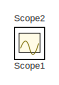
[diagram: root canvas - part 1/4, top left region]
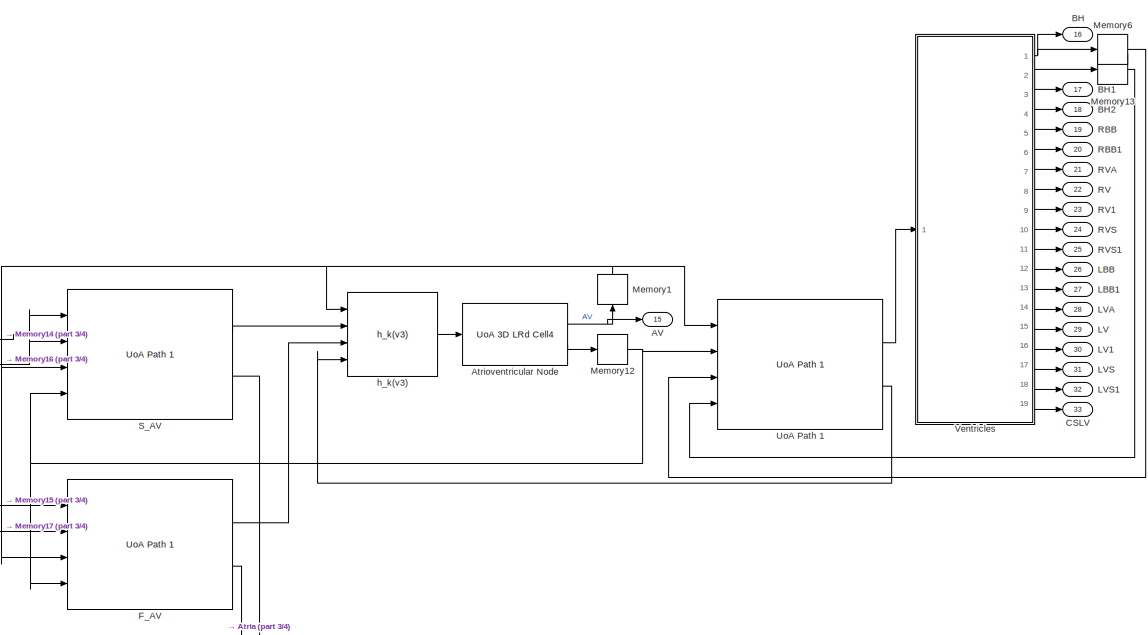
[diagram: root canvas - part 2/4, top right region]
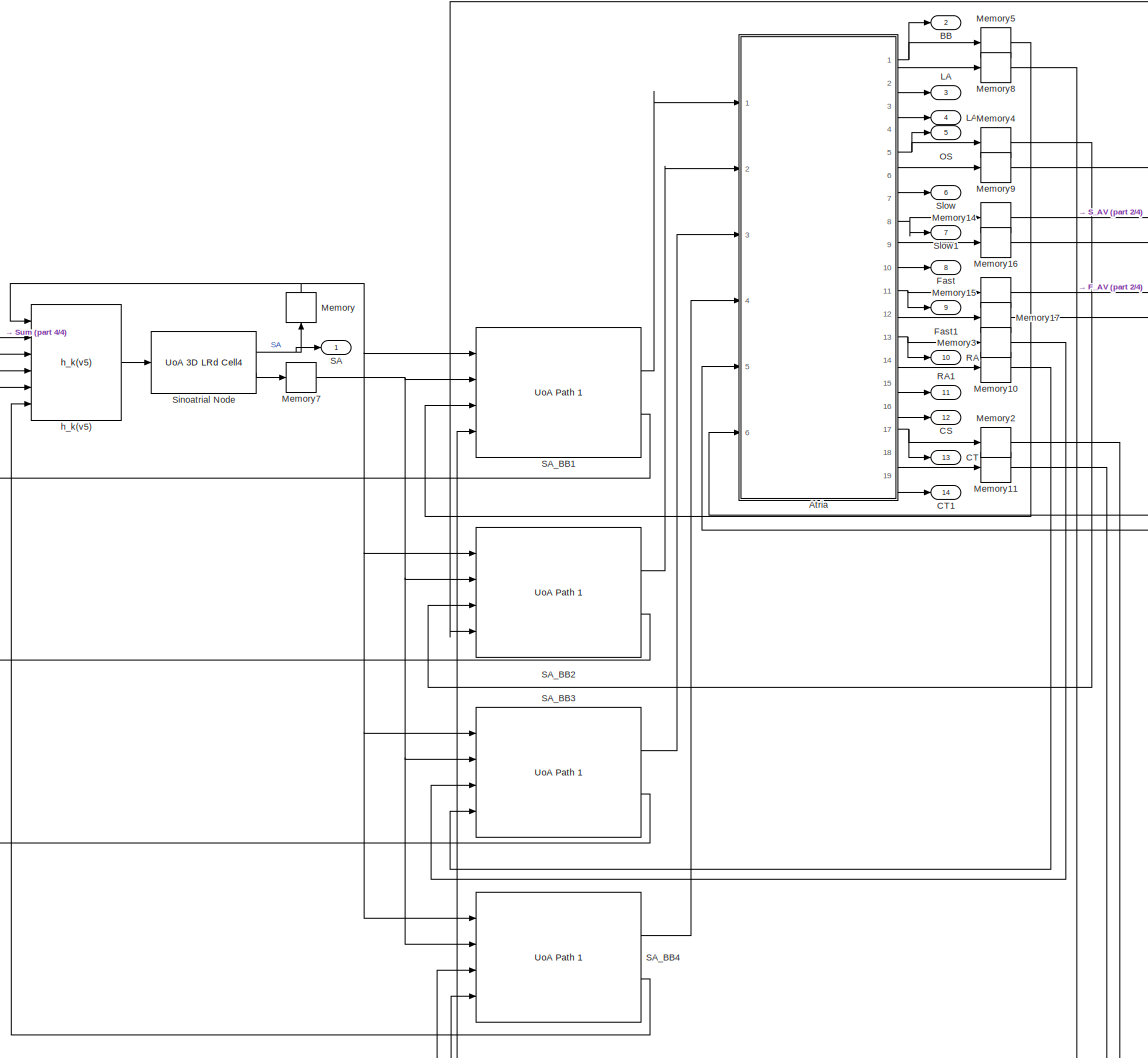
[diagram: root canvas - part 3/4, left side, full height]
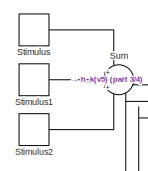
[diagram: root canvas - part 4/4, middle left region]
MODEL slx_4b9866b7ad6d
KIND model
BLOCK [Outport] AV
  IconDisplay = Port number
  Port = 15
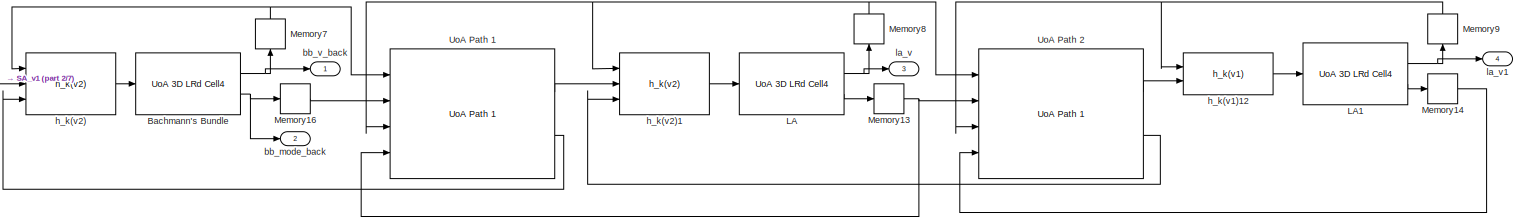
[diagram: Atria - part 1/7, full width, top band]
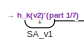
[diagram: Atria - part 2/7, top left region]
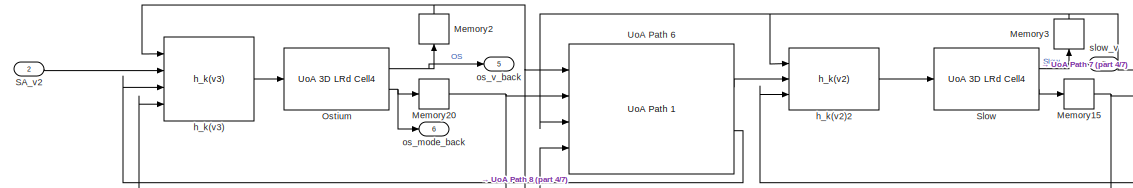
[diagram: Atria - part 3/7, top left region]
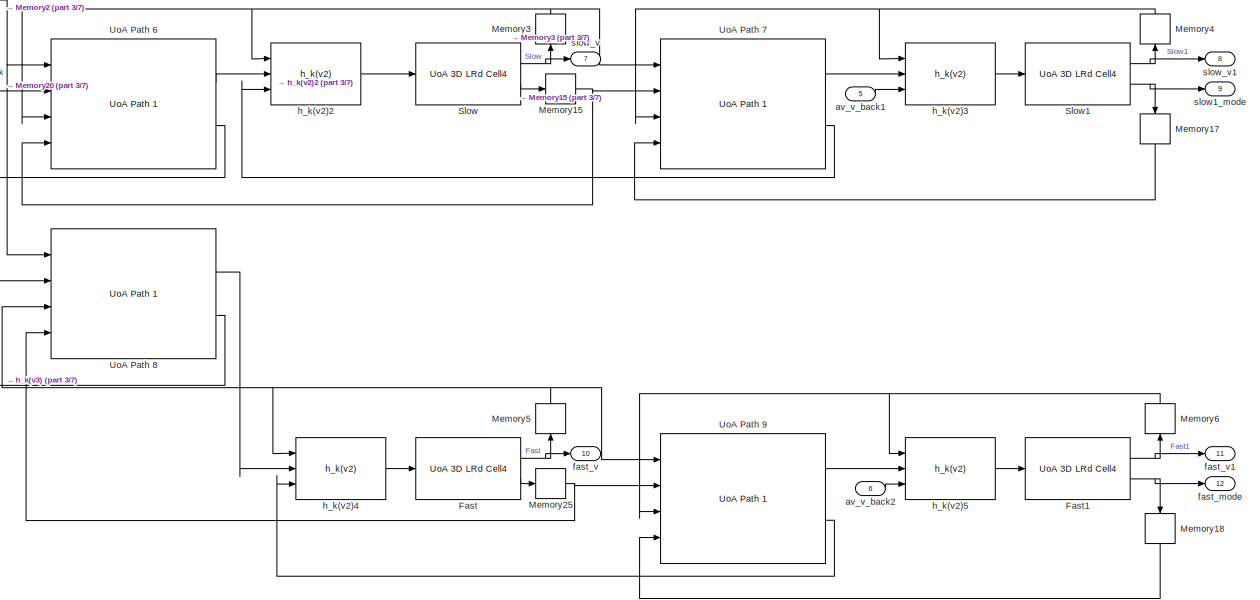
[diagram: Atria - part 4/7, central region]
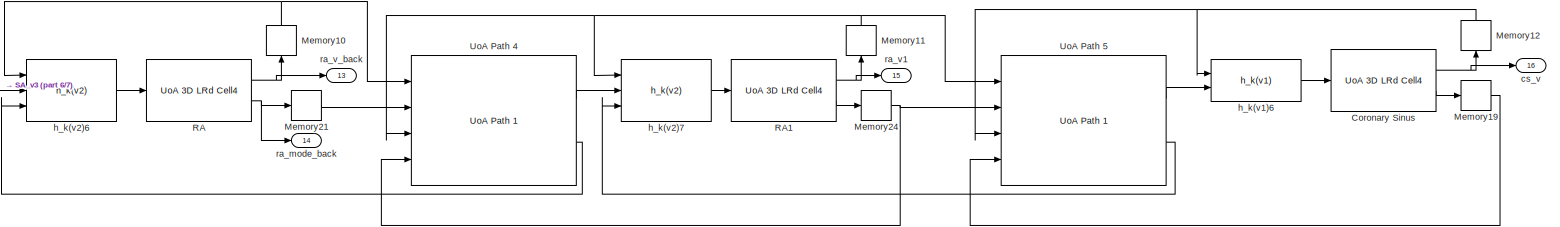
[diagram: Atria - part 5/7, full width, bottom band]
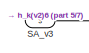
[diagram: Atria - part 6/7, bottom left region]
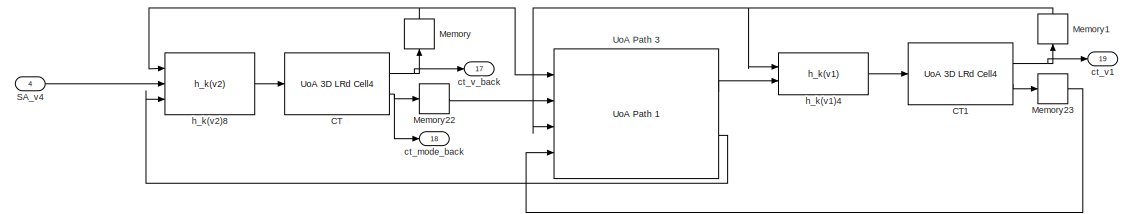
[diagram: Atria - part 7/7, bottom left region]
BLOCK [SubSystem] Atria
  Ports = [6, 19]
  RequestExecContextInheritance = off
BLOCK [Reference] Atria/Bachmann's Bundle  REF=UoA_3D_LRd_2008/UoA 3D LRd Cell4
  Ports = [1, 2]
  SourceBlock = UoA_3D_LRd_2008/UoA 3D LRd Cell4
  V_O_max = 131.1
  V_R = 30
  V_T = 44.5
  alpha0_x = -0.0087
  alpha0_y = -0.1909
  alpha0_z = -0.1904
  alpha1_x = -0.0236
  alpha1_y = -0.0455
  alpha1_z = -0.0129
  alpha2_x = -0.0069
  alpha2_y = 0.0759
  alpha2_z = 6.8265
  alpha3_x = -0.0332
  alpha3_y = 0.0200
  alpha3_z = 0.0020
  i_st_gx = 0.7772
  i_st_gy = 0.0589
  i_st_gz = 0.2766
  v_n_R_max = 0.04
BLOCK [Reference] Atria/CT  REF=UoA_3D_LRd_2008/UoA 3D LRd Cell4
  Ports = [1, 2]
  SourceBlock = UoA_3D_LRd_2008/UoA 3D LRd Cell4
  V_O_max = 131.1
  V_R = 30
  V_T = 44.5
  alpha0_x = -0.0087
  alpha0_y = -0.1909
  alpha0_z = -0.1904
  alpha1_x = -0.0236
  alpha1_y = -0.0455
  alpha1_z = -0.0129
  alpha2_x = -0.0069
  alpha2_y = 0.0759
  alpha2_z = 6.8265
  alpha3_x = -0.0332
  alpha3_y = 0.0200
  alpha3_z = 0.0020
  i_st_gx = 0.7772
  i_st_gy = 0.0589
  i_st_gz = 0.2766
  v_n_R_max = 0.04
BLOCK [Reference] Atria/CT1  REF=UoA_3D_LRd_2008/UoA 3D LRd Cell4
  Ports = [1, 2]
  SourceBlock = UoA_3D_LRd_2008/UoA 3D LRd Cell4
  V_O_max = 131.1
  V_R = 30
  V_T = 44.5
  alpha0_x = -0.0087
  alpha0_y = -0.1909
  alpha0_z = -0.1904
  alpha1_x = -0.0236
  alpha1_y = -0.0455
  alpha1_z = -0.0129
  alpha2_x = -0.0069
  alpha2_y = 0.0759
  alpha2_z = 6.8265
  alpha3_x = -0.0332
  alpha3_y = 0.0200
  alpha3_z = 0.0020
  i_st_gx = 0.7772
  i_st_gy = 0.0589
  i_st_gz = 0.2766
  v_n_R_max = 0.04
BLOCK [Reference] Atria/Coronary Sinus  REF=UoA_3D_LRd_2008/UoA 3D LRd Cell4
  Ports = [1, 2]
  SourceBlock = UoA_3D_LRd_2008/UoA 3D LRd Cell4
  V_O_max = 131.1
  V_R = 30
  V_T = 44.5
  alpha0_x = -0.0087
  alpha0_y = -0.1909
  alpha0_z = -0.1904
  alpha1_x = -0.0236
  alpha1_y = -0.0455
  alpha1_z = -0.0129
  alpha2_x = -0.0069
  alpha2_y = 0.0759
  alpha2_z = 6.8265
  alpha3_x = -0.0332
  alpha3_y = 0.0200
  alpha3_z = 0.0020
  i_st_gx = 0.7772
  i_st_gy = 0.0589
  i_st_gz = 0.2766
  v_n_R_max = 0.04
BLOCK [Reference] Atria/Fast  REF=UoA_3D_LRd_2008/UoA 3D LRd Cell4
  Ports = [1, 2]
  SourceBlock = UoA_3D_LRd_2008/UoA 3D LRd Cell4
  V_O_max = 131.1
  V_R = 30
  V_T = 44.5
  alpha0_x = -0.0087
  alpha0_y = -0.1909
  alpha0_z = -0.1904
  alpha1_x = -0.0236
  alpha1_y = -0.0455
  alpha1_z = -0.0129
  alpha2_x = -0.0069
  alpha2_y = 0.0759
  alpha2_z = 6.8265
  alpha3_x = -0.0332
  alpha3_y = 0.0180
  alpha3_z = 0.0020
  i_st_gx = 0.7772
  i_st_gy = 0.0589
  i_st_gz = 0.2766
  v_n_R_max = 0.04
BLOCK [Reference] Atria/Fast1  REF=UoA_3D_LRd_2008/UoA 3D LRd Cell4
  Ports = [1, 2]
  SourceBlock = UoA_3D_LRd_2008/UoA 3D LRd Cell4
  V_O_max = 131.1
  V_R = 30
  V_T = 44.5
  alpha0_x = -0.0087
  alpha0_y = -0.1909
  alpha0_z = -0.1904
  alpha1_x = -0.0236
  alpha1_y = -0.0455
  alpha1_z = -0.0129
  alpha2_x = -0.0069
  alpha2_y = 0.0759
  alpha2_z = 6.8265
  alpha3_x = -0.0332
  alpha3_y = 0.0180
  alpha3_z = 0.0020
  i_st_gx = 0.7772
  i_st_gy = 0.0589
  i_st_gz = 0.2766
  v_n_R_max = 0.04
BLOCK [Reference] Atria/LA  REF=UoA_3D_LRd_2008/UoA 3D LRd Cell4
  Ports = [1, 2]
  SourceBlock = UoA_3D_LRd_2008/UoA 3D LRd Cell4
  V_O_max = 131.1
  V_R = 30
  V_T = 44.5
  alpha0_x = -0.0087
  alpha0_y = -0.1909
  alpha0_z = -0.1904
  alpha1_x = -0.0236
  alpha1_y = -0.0455
  alpha1_z = -0.0129
  alpha2_x = -0.0069
  alpha2_y = 0.0759
  alpha2_z = 6.8265
  alpha3_x = -0.0332
  alpha3_y = 0.0200
  alpha3_z = 0.0020
  i_st_gx = 0.7772
  i_st_gy = 0.0589
  i_st_gz = 0.2766
  v_n_R_max = 0.04
BLOCK [Reference] Atria/LA1  REF=UoA_3D_LRd_2008/UoA 3D LRd Cell4
  Ports = [1, 2]
  SourceBlock = UoA_3D_LRd_2008/UoA 3D LRd Cell4
  V_O_max = 131.1
  V_R = 30
  V_T = 44.5
  alpha0_x = -0.0087
  alpha0_y = -0.1909
  alpha0_z = -0.1904
  alpha1_x = -0.0236
  alpha1_y = -0.0455
  alpha1_z = -0.0129
  alpha2_x = -0.0069
  alpha2_y = 0.0759
  alpha2_z = 6.8265
  alpha3_x = -0.0332
  alpha3_y = 0.0200
  alpha3_z = 0.0020
  i_st_gx = 0.7772
  i_st_gy = 0.0589
  i_st_gz = 0.2766
  v_n_R_max = 0.04
BLOCK [Memory] Atria/Memory
BLOCK [Memory] Atria/Memory1
BLOCK [Memory] Atria/Memory10
BLOCK [Memory] Atria/Memory11
BLOCK [Memory] Atria/Memory12
BLOCK [Memory] Atria/Memory13
BLOCK [Memory] Atria/Memory14
BLOCK [Memory] Atria/Memory15
BLOCK [Memory] Atria/Memory16
BLOCK [Memory] Atria/Memory17
BLOCK [Memory] Atria/Memory18
BLOCK [Memory] Atria/Memory19
BLOCK [Memory] Atria/Memory2
BLOCK [Memory] Atria/Memory20
BLOCK [Memory] Atria/Memory21
BLOCK [Memory] Atria/Memory22
BLOCK [Memory] Atria/Memory23
BLOCK [Memory] Atria/Memory24
BLOCK [Memory] Atria/Memory25
BLOCK [Memory] Atria/Memory3
BLOCK [Memory] Atria/Memory4
BLOCK [Memory] Atria/Memory5
BLOCK [Memory] Atria/Memory6
BLOCK [Memory] Atria/Memory7
BLOCK [Memory] Atria/Memory8
BLOCK [Memory] Atria/Memory9
BLOCK [Reference] Atria/Ostium  REF=UoA_3D_LRd_2008/UoA 3D LRd Cell4
  Ports = [1, 2]
  SourceBlock = UoA_3D_LRd_2008/UoA 3D LRd Cell4
  V_O_max = 131.1
  V_R = 30
  V_T = 44.5
  alpha0_x = -0.0087
  alpha0_y = -0.1909
  alpha0_z = -0.1904
  alpha1_x = -0.0236
  alpha1_y = -0.0455
  alpha1_z = -0.0129
  alpha2_x = -0.0069
  alpha2_y = 0.0759
  alpha2_z = 6.8265
  alpha3_x = -0.0332
  alpha3_y = 0.0200
  alpha3_z = 0.0020
  i_st_gx = 0.7772
  i_st_gy = 0.0589
  i_st_gz = 0.2766
  v_n_R_max = 0.04
BLOCK [Reference] Atria/RA  REF=UoA_3D_LRd_2008/UoA 3D LRd Cell4
  Ports = [1, 2]
  SourceBlock = UoA_3D_LRd_2008/UoA 3D LRd Cell4
  V_O_max = 131.1
  V_R = 30
  V_T = 44.5
  alpha0_x = -0.0087
  alpha0_y = -0.1909
  alpha0_z = -0.1904
  alpha1_x = -0.0236
  alpha1_y = -0.0455
  alpha1_z = -0.0129
  alpha2_x = -0.0069
  alpha2_y = 0.0759
  alpha2_z = 6.8265
  alpha3_x = -0.0332
  alpha3_y = 0.0200
  alpha3_z = 0.0020
  i_st_gx = 0.7772
  i_st_gy = 0.0589
  i_st_gz = 0.2766
  v_n_R_max = 0.04
BLOCK [Reference] Atria/RA1  REF=UoA_3D_LRd_2008/UoA 3D LRd Cell4
  Ports = [1, 2]
  SourceBlock = UoA_3D_LRd_2008/UoA 3D LRd Cell4
  V_O_max = 131.1
  V_R = 30
  V_T = 44.5
  alpha0_x = -0.0087
  alpha0_y = -0.1909
  alpha0_z = -0.1904
  alpha1_x = -0.0236
  alpha1_y = -0.0455
  alpha1_z = -0.0129
  alpha2_x = -0.0069
  alpha2_y = 0.0759
  alpha2_z = 6.8265
  alpha3_x = -0.0332
  alpha3_y = 0.0200
  alpha3_z = 0.0020
  i_st_gx = 0.7772
  i_st_gy = 0.0589
  i_st_gz = 0.2766
  v_n_R_max = 0.04
BLOCK [Inport] Atria/SA_v1
  IconDisplay = Port number
BLOCK [Inport] Atria/SA_v2
  IconDisplay = Port number
  Port = 2
BLOCK [Inport] Atria/SA_v3
  IconDisplay = Port number
  Port = 3
BLOCK [Inport] Atria/SA_v4
  IconDisplay = Port number
  Port = 4
BLOCK [Reference] Atria/Slow  REF=UoA_3D_LRd_2008/UoA 3D LRd Cell4
  Ports = [1, 2]
  SourceBlock = UoA_3D_LRd_2008/UoA 3D LRd Cell4
  V_O_max = 131.1
  V_R = 30
  V_T = 44.5
  alpha0_x = -0.0087
  alpha0_y = -0.1909
  alpha0_z = -0.1904
  alpha1_x = -0.0236
  alpha1_y = -0.0455
  alpha1_z = -0.0129
  alpha2_x = -0.0069
  alpha2_y = 0.0759
  alpha2_z = 6.8265
  alpha3_x = -0.0332
  alpha3_y = 0.0200
  alpha3_z = 0.0020
  i_st_gx = 0.7772
  i_st_gy = 0.0589
  i_st_gz = 0.2766
  v_n_R_max = 0.04
BLOCK [Reference] Atria/Slow1  REF=UoA_3D_LRd_2008/UoA 3D LRd Cell4
  Ports = [1, 2]
  SourceBlock = UoA_3D_LRd_2008/UoA 3D LRd Cell4
  V_O_max = 131.1
  V_R = 30
  V_T = 44.5
  alpha0_x = -0.0087
  alpha0_y = -0.1909
  alpha0_z = -0.1904
  alpha1_x = -0.0236
  alpha1_y = -0.0455
  alpha1_z = -0.0129
  alpha2_x = -0.0069
  alpha2_y = 0.0759
  alpha2_z = 6.8265
  alpha3_x = -0.0332
  alpha3_y = 0.0200
  alpha3_z = 0.0020
  i_st_gx = 0.7772
  i_st_gy = 0.0589
  i_st_gz = 0.2766
  v_n_R_max = 0.04
BLOCK [Reference] Atria/UoA Path 1  REF=UoA_3D_LRd_2008/UoA Path 1
  Ports = [4, 2]
  SourceBlock = UoA_3D_LRd_2008/UoA Path 1
  cell1_charge_time = 10
  cell1_conduction_time = 30
  cell2_charge_time = 10
  cell2_conduction_time = 30
BLOCK [Reference] Atria/UoA Path 2  REF=UoA_3D_LRd_2008/UoA Path 1
  Ports = [4, 2]
  SourceBlock = UoA_3D_LRd_2008/UoA Path 1
  cell1_charge_time = 10
  cell1_conduction_time = 40
  cell2_charge_time = 10
  cell2_conduction_time = 40
BLOCK [Reference] Atria/UoA Path 3  REF=UoA_3D_LRd_2008/UoA Path 1
  Ports = [4, 2]
  SourceBlock = UoA_3D_LRd_2008/UoA Path 1
  cell1_charge_time = 10
  cell1_conduction_time = 20
  cell2_charge_time = 10
  cell2_conduction_time = 20
BLOCK [Reference] Atria/UoA Path 4  REF=UoA_3D_LRd_2008/UoA Path 1
  Ports = [4, 2]
  SourceBlock = UoA_3D_LRd_2008/UoA Path 1
  cell1_charge_time = 10
  cell1_conduction_time = 20
  cell2_charge_time = 10
  cell2_conduction_time = 20
BLOCK [Reference] Atria/UoA Path 5  REF=UoA_3D_LRd_2008/UoA Path 1
  Ports = [4, 2]
  SourceBlock = UoA_3D_LRd_2008/UoA Path 1
  cell1_charge_time = 10
  cell1_conduction_time = 20
  cell2_charge_time = 10
  cell2_conduction_time = 20
BLOCK [Reference] Atria/UoA Path 6  REF=UoA_3D_LRd_2008/UoA Path 1
  Ports = [4, 2]
  SourceBlock = UoA_3D_LRd_2008/UoA Path 1
  cell1_charge_time = 10
  cell1_conduction_time = 30
  cell2_charge_time = 10
  cell2_conduction_time = 30
BLOCK [Reference] Atria/UoA Path 7  REF=UoA_3D_LRd_2008/UoA Path 1
  Ports = [4, 2]
  SourceBlock = UoA_3D_LRd_2008/UoA Path 1
  cell1_charge_time = 10
  cell1_conduction_time = 30
  cell2_charge_time = 10
  cell2_conduction_time = 30
BLOCK [Reference] Atria/UoA Path 8  REF=UoA_3D_LRd_2008/UoA Path 1
  Ports = [4, 2]
  SourceBlock = UoA_3D_LRd_2008/UoA Path 1
  cell1_charge_time = 10
  cell1_conduction_time = 20
  cell2_charge_time = 10
  cell2_conduction_time = 20
BLOCK [Reference] Atria/UoA Path 9  REF=UoA_3D_LRd_2008/UoA Path 1
  Ports = [4, 2]
  SourceBlock = UoA_3D_LRd_2008/UoA Path 1
  cell1_charge_time = 10
  cell1_conduction_time = 20
  cell2_charge_time = 10
  cell2_conduction_time = 20
BLOCK [Inport] Atria/av_v_back1
  IconDisplay = Port number
  Port = 5
BLOCK [Inport] Atria/av_v_back2
  IconDisplay = Port number
  Port = 6
BLOCK [Outport] Atria/bb_mode_back
  IconDisplay = Port number
  Port = 2
BLOCK [Outport] Atria/bb_v_back
  IconDisplay = Port number
BLOCK [Outport] Atria/cs_v
  IconDisplay = Port number
  Port = 16
BLOCK [Outport] Atria/ct_mode_back
  IconDisplay = Port number
  Port = 18
BLOCK [Outport] Atria/ct_v1
  IconDisplay = Port number
  Port = 19
BLOCK [Outport] Atria/ct_v_back
  IconDisplay = Port number
  Port = 17
BLOCK [Outport] Atria/fast_mode
  IconDisplay = Port number
  Port = 12
BLOCK [Outport] Atria/fast_v
  IconDisplay = Port number
  Port = 10
BLOCK [Outport] Atria/fast_v1
  IconDisplay = Port number
  Port = 11
BLOCK [Reference] Atria/h_k(v1)12  REF=UoA_3D_LRd_2008/h_k(v1)
  A_m = 10*10
  C_m = 1/(10*10)
  G_1 = 10*10
  Ports = [2, 1]
  SourceBlock = UoA_3D_LRd_2008/h_k(v1)
  d_1 = 10
  s_1 = 1/10
BLOCK [Reference] Atria/h_k(v1)4  REF=UoA_3D_LRd_2008/h_k(v1)
  A_m = 10*10
  C_m = 1/(10*10)
  G_1 = 10*10
  Ports = [2, 1]
  SourceBlock = UoA_3D_LRd_2008/h_k(v1)
  d_1 = 10
  s_1 = 1/10
BLOCK [Reference] Atria/h_k(v1)6  REF=UoA_3D_LRd_2008/h_k(v1)
  A_m = 10*10
  C_m = 1/(10*10)
  G_1 = 10*10
  Ports = [2, 1]
  SourceBlock = UoA_3D_LRd_2008/h_k(v1)
  d_1 = 10
  s_1 = 1/10
BLOCK [Reference] Atria/h_k(v2)  REF=UoA_3D_LRd_2008/h_k(v2)
  A_m = 10*10
  C_m = 1/(10*10)
  G_1 = 10*10
  G_2 = 10*10
  Ports = [3, 1]
  SourceBlock = UoA_3D_LRd_2008/h_k(v2)
  d_1 = 10
  d_2 = 10
  s_1 = 1/10
  s_2 = 1/10
BLOCK [Reference] Atria/h_k(v2)1  REF=UoA_3D_LRd_2008/h_k(v2)
  A_m = 10*10
  C_m = 1/(10*10)
  G_1 = 10*10
  G_2 = 10*10
  Ports = [3, 1]
  SourceBlock = UoA_3D_LRd_2008/h_k(v2)
  d_1 = 10
  d_2 = 10
  s_1 = 1/10
  s_2 = 1/10
BLOCK [Reference] Atria/h_k(v2)2  REF=UoA_3D_LRd_2008/h_k(v2)
  A_m = 10*10
  C_m = 1/(10*10)
  G_1 = 10*10
  G_2 = 10*10
  Ports = [3, 1]
  SourceBlock = UoA_3D_LRd_2008/h_k(v2)
  d_1 = 10
  d_2 = 10
  s_1 = 1/10
  s_2 = 1/10
BLOCK [Reference] Atria/h_k(v2)3  REF=UoA_3D_LRd_2008/h_k(v2)
  A_m = 10*10
  C_m = 1/(10*10)
  G_1 = 10*10
  G_2 = 10*10
  Ports = [3, 1]
  SourceBlock = UoA_3D_LRd_2008/h_k(v2)
  d_1 = 10
  d_2 = 10
  s_1 = 1/10
  s_2 = 1/10
BLOCK [Reference] Atria/h_k(v2)4  REF=UoA_3D_LRd_2008/h_k(v2)
  A_m = 10*10
  C_m = 1/(10*10)
  G_1 = 10*10
  G_2 = 10*10
  Ports = [3, 1]
  SourceBlock = UoA_3D_LRd_2008/h_k(v2)
  d_1 = 10
  d_2 = 10
  s_1 = 1/10
  s_2 = 1/10
BLOCK [Reference] Atria/h_k(v2)5  REF=UoA_3D_LRd_2008/h_k(v2)
  A_m = 10*10
  C_m = 1/(10*10)
  G_1 = 10*10
  G_2 = 10*10
  Ports = [3, 1]
  SourceBlock = UoA_3D_LRd_2008/h_k(v2)
  d_1 = 10
  d_2 = 10
  s_1 = 1/10
  s_2 = 1/10
BLOCK [Reference] Atria/h_k(v2)6  REF=UoA_3D_LRd_2008/h_k(v2)
  A_m = 10*10
  C_m = 1/(10*10)
  G_1 = 10*10
  G_2 = 10*10
  Ports = [3, 1]
  SourceBlock = UoA_3D_LRd_2008/h_k(v2)
  d_1 = 10
  d_2 = 10
  s_1 = 1/10
  s_2 = 1/10
BLOCK [Reference] Atria/h_k(v2)7  REF=UoA_3D_LRd_2008/h_k(v2)
  A_m = 10*10
  C_m = 1/(10*10)
  G_1 = 10*10
  G_2 = 10*10
  Ports = [3, 1]
  SourceBlock = UoA_3D_LRd_2008/h_k(v2)
  d_1 = 10
  d_2 = 10
  s_1 = 1/10
  s_2 = 1/10
BLOCK [Reference] Atria/h_k(v2)8  REF=UoA_3D_LRd_2008/h_k(v2)
  A_m = 10*10
  C_m = 1/(10*10)
  G_1 = 10*10
  G_2 = 10*10
  Ports = [3, 1]
  SourceBlock = UoA_3D_LRd_2008/h_k(v2)
  d_1 = 10
  d_2 = 10
  s_1 = 1/10
  s_2 = 1/10
BLOCK [Reference] Atria/h_k(v3)  REF=UoA_3D_LRd_2008/h_k(v3)
  A_m = 10*10
  C_m = 1/(10*10)
  G_1 = 10*10
  G_2 = 10*10
  G_3 = 10*10
  Ports = [4, 1]
  SourceBlock = UoA_3D_LRd_2008/h_k(v3)
  d_1 = 1
  d_2 = 10
  d_3 = 10
  s_1 = 1/10
  s_2 = 1/10
  s_3 = 1/10
BLOCK [Outport] Atria/la_v
  IconDisplay = Port number
  Port = 3
BLOCK [Outport] Atria/la_v1
  IconDisplay = Port number
  Port = 4
BLOCK [Outport] Atria/os_mode_back
  IconDisplay = Port number
  Port = 6
BLOCK [Outport] Atria/os_v_back
  IconDisplay = Port number
  Port = 5
BLOCK [Outport] Atria/ra_mode_back
  IconDisplay = Port number
  Port = 14
BLOCK [Outport] Atria/ra_v1
  IconDisplay = Port number
  Port = 15
BLOCK [Outport] Atria/ra_v_back
  IconDisplay = Port number
  Port = 13
BLOCK [Outport] Atria/slow1_mode
  IconDisplay = Port number
  Port = 9
BLOCK [Outport] Atria/slow_v
  IconDisplay = Port number
  Port = 7
BLOCK [Outport] Atria/slow_v1
  IconDisplay = Port number
  Port = 8
BLOCK [Reference] Atrioventricular Node  REF=UoA_3D_LRd_2008/UoA 3D LRd Cell4
  Ports = [1, 2]
  SourceBlock = UoA_3D_LRd_2008/UoA 3D LRd Cell4
  V_O_max = 131.1
  V_R = 30
  V_T = 44.5
  alpha0_x = -0.0087
  alpha0_y = -0.1909
  alpha0_z = -0.1904
  alpha1_x = -0.0236
  alpha1_y = -0.0455
  alpha1_z = -0.0129
  alpha2_x = -0.0069
  alpha2_y = 0.0759
  alpha2_z = 6.8265
  alpha3_x = -0.0332
  alpha3_y = 0.0200
  alpha3_z = 0.0020
  i_st_gx = 0.7772
  i_st_gy = 0.0589
  i_st_gz = 0.2766
  v_n_R_max = 0.04
BLOCK [Outport] BB
  IconDisplay = Port number
  Port = 2
BLOCK [Outport] BH
  IconDisplay = Port number
  Port = 16
BLOCK [Outport] BH1
  IconDisplay = Port number
  Port = 17
BLOCK [Outport] BH2
  IconDisplay = Port number
  Port = 18
BLOCK [Outport] CS
  IconDisplay = Port number
  Port = 12
BLOCK [Outport] CSLV
  IconDisplay = Port number
  Port = 33
BLOCK [Outport] CT
  IconDisplay = Port number
  Port = 13
BLOCK [Outport] CT1
  IconDisplay = Port number
  Port = 14
BLOCK [Reference] F_AV  REF=UoA_3D_LRd_2008/UoA Path 1
  Ports = [4, 2]
  SourceBlock = UoA_3D_LRd_2008/UoA Path 1
  cell1_charge_time = 10
  cell1_conduction_time = 10
  cell2_charge_time = 10
  cell2_conduction_time = 10
BLOCK [Outport] Fast
  IconDisplay = Port number
  Port = 8
BLOCK [Outport] Fast1
  IconDisplay = Port number
  Port = 9
BLOCK [Outport] LA
  IconDisplay = Port number
  Port = 3
BLOCK [Outport] LA1
  IconDisplay = Port number
  Port = 4
BLOCK [Outport] LBB
  IconDisplay = Port number
  Port = 26
BLOCK [Outport] LBB1
  IconDisplay = Port number
  Port = 27
BLOCK [Outport] LV
  IconDisplay = Port number
  Port = 29
BLOCK [Outport] LV1
  IconDisplay = Port number
  Port = 30
BLOCK [Outport] LVA
  IconDisplay = Port number
  Port = 28
BLOCK [Outport] LVS
  IconDisplay = Port number
  Port = 31
BLOCK [Outport] LVS1
  IconDisplay = Port number
  Port = 32
BLOCK [Memory] Memory
BLOCK [Memory] Memory1
BLOCK [Memory] Memory10
BLOCK [Memory] Memory11
BLOCK [Memory] Memory12
BLOCK [Memory] Memory13
BLOCK [Memory] Memory14
BLOCK [Memory] Memory15
BLOCK [Memory] Memory16
BLOCK [Memory] Memory17
BLOCK [Memory] Memory2
BLOCK [Memory] Memory3
BLOCK [Memory] Memory4
BLOCK [Memory] Memory5
BLOCK [Memory] Memory6
BLOCK [Memory] Memory7
BLOCK [Memory] Memory8
BLOCK [Memory] Memory9
BLOCK [Outport] OS
  IconDisplay = Port number
  Port = 5
BLOCK [Outport] RA
  IconDisplay = Port number
  Port = 10
BLOCK [Outport] RA1
  IconDisplay = Port number
  Port = 11
BLOCK [Outport] RBB
  IconDisplay = Port number
  Port = 19
BLOCK [Outport] RBB1
  IconDisplay = Port number
  Port = 20
BLOCK [Outport] RV
  IconDisplay = Port number
  Port = 22
BLOCK [Outport] RV1
  IconDisplay = Port number
  Port = 23
BLOCK [Outport] RVA
  IconDisplay = Port number
  Port = 21
BLOCK [Outport] RVS
  IconDisplay = Port number
  Port = 24
BLOCK [Outport] RVS1
  IconDisplay = Port number
  Port = 25
BLOCK [Outport] SA
  IconDisplay = Port number
BLOCK [Reference] SA_BB1  REF=UoA_3D_LRd_2008/UoA Path 1
  Ports = [4, 2]
  SourceBlock = UoA_3D_LRd_2008/UoA Path 1
  cell1_charge_time = 10
  cell1_conduction_time = 20
  cell2_charge_time = 10
  cell2_conduction_time = 20
BLOCK [Reference] SA_BB2  REF=UoA_3D_LRd_2008/UoA Path 1
  Ports = [4, 2]
  SourceBlock = UoA_3D_LRd_2008/UoA Path 1
  cell1_charge_time = 10
  cell1_conduction_time = 20
  cell2_charge_time = 10
  cell2_conduction_time = 20
BLOCK [Reference] SA_BB3  REF=UoA_3D_LRd_2008/UoA Path 1
  Ports = [4, 2]
  SourceBlock = UoA_3D_LRd_2008/UoA Path 1
  cell1_charge_time = 10
  cell1_conduction_time = 20
  cell2_charge_time = 10
  cell2_conduction_time = 20
BLOCK [Reference] SA_BB4  REF=UoA_3D_LRd_2008/UoA Path 1
  Ports = [4, 2]
  SourceBlock = UoA_3D_LRd_2008/UoA Path 1
  cell1_charge_time = 10
  cell1_conduction_time = 20
  cell2_charge_time = 10
  cell2_conduction_time = 20
BLOCK [Reference] S_AV  REF=UoA_3D_LRd_2008/UoA Path 1
  Ports = [4, 2]
  SourceBlock = UoA_3D_LRd_2008/UoA Path 1
  cell1_charge_time = 10
  cell1_conduction_time = 15
  cell2_charge_time = 10
  cell2_conduction_time = 15
BLOCK [Scope] Scope1
  DataFormat = StructureWithTime
  Floating = off
  IOType = viewer
  LimitDataPoints = off
  NumInputPorts = 5
  Ports = []
  SampleTime = 0
  SaveName = ScopeData1
  ShowLegends = off
  TimeRange = 1000
  YMax = 150~150~150~150~150
  YMin = -1~-5~-5~-5~-5
BLOCK [Scope] Scope2
  DataFormat = StructureWithTime
  Floating = off
  IOType = viewer
  LimitDataPoints = off
  NumInputPorts = 12
  Ports = []
  SampleTime = 0
  SaveName = ScopeData2
  ShowLegends = off
  TimeRange = 1000
  YMax = 1~1~1~1~1~1~1~1~1~1~1~1
  YMin = 0~-1~-1~-1~-1~-1~-1~-1~-1~-1~-1~-1
  ZoomMode = xonly
BLOCK [Reference] Sinoatrial Node  REF=UoA_3D_LRd_2008/UoA 3D LRd Cell4
  Ports = [1, 2]
  SourceBlock = UoA_3D_LRd_2008/UoA 3D LRd Cell4
  V_O_max = 131.1
  V_R = 30
  V_T = 44.5
  alpha0_x = -0.0087
  alpha0_y = -0.1909
  alpha0_z = -0.1904
  alpha1_x = -0.0236
  alpha1_y = -0.0455
  alpha1_z = -0.0129
  alpha2_x = -0.0069
  alpha2_y = 0.0759
  alpha2_z = 6.8265
  alpha3_x = -0.0332
  alpha3_y = 0.0200
  alpha3_z = 0.0020
  i_st_gx = 0.7772
  i_st_gy = 0.0589
  i_st_gz = 0.2766
  v_n_R_max = 0.04
BLOCK [Outport] Slow
  IconDisplay = Port number
  Port = 6
BLOCK [Outport] Slow1
  IconDisplay = Port number
  Port = 7
BLOCK [DiscretePulseGenerator] Stimulus
  Amplitude = 131.1*2
  Period = 1000
  PhaseDelay = 10
  Ports = [0, 1]
  PulseType = Time based
  PulseWidth = 1.5
BLOCK [DiscretePulseGenerator] Stimulus1
  Amplitude = 131.1*2
  Period = 1000
  PhaseDelay = 415
  Ports = [0, 1]
  PulseType = Time based
  PulseWidth = 1.5
BLOCK [DiscretePulseGenerator] Stimulus2
  Amplitude = 131.1*2
  Period = 1000
  PhaseDelay = 815
  Ports = [0, 1]
  PulseType = Time based
  PulseWidth = 1.5
BLOCK [Sum] Sum
  IconShape = round
  InputSameDT = off
  Inputs = +++
  OutDataTypeStr = Inherit: Inherit via internal rule
  Ports = [3, 1]
  SaturateOnIntegerOverflow = off
BLOCK [Reference] UoA Path 1  REF=UoA_3D_LRd_2008/UoA Path 1
  Ports = [4, 2]
  SourceBlock = UoA_3D_LRd_2008/UoA Path 1
  cell1_charge_time = 10
  cell1_conduction_time = 30
  cell2_charge_time = 10
  cell2_conduction_time = 30
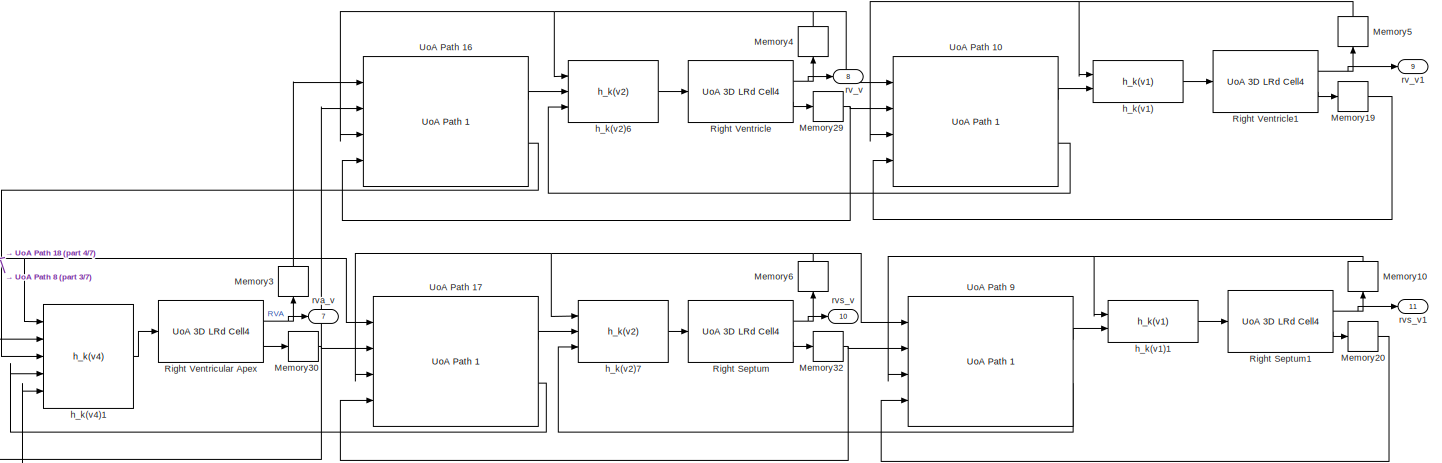
[diagram: Ventricles - part 1/7, top right region]
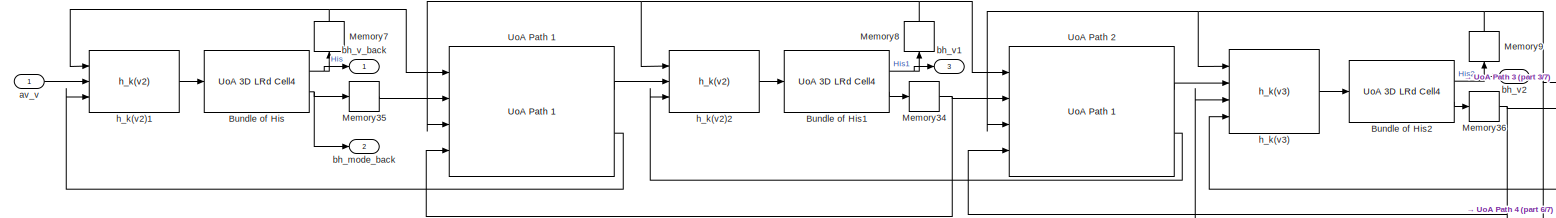
[diagram: Ventricles - part 2/7, top left region]
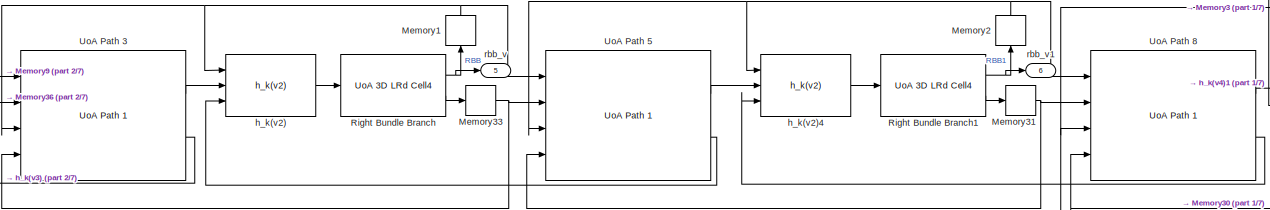
[diagram: Ventricles - part 3/7, top center region]
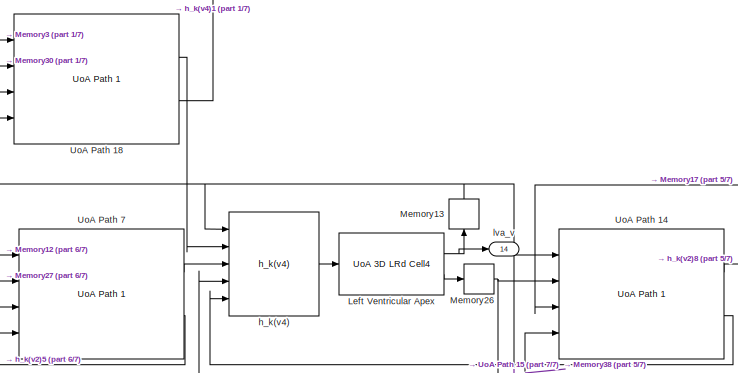
[diagram: Ventricles - part 4/7, central region]
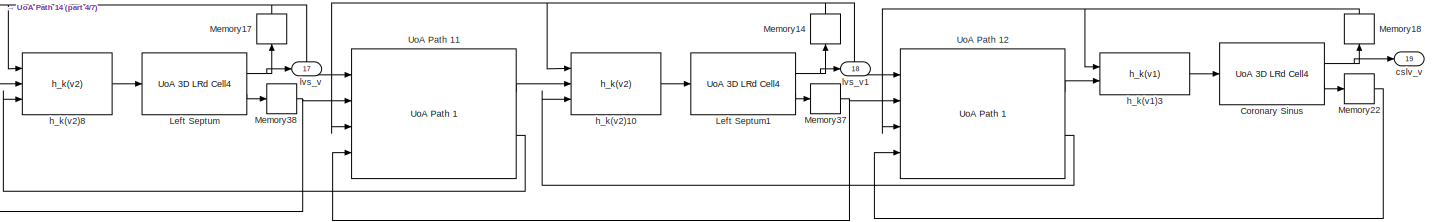
[diagram: Ventricles - part 5/7, middle right region]
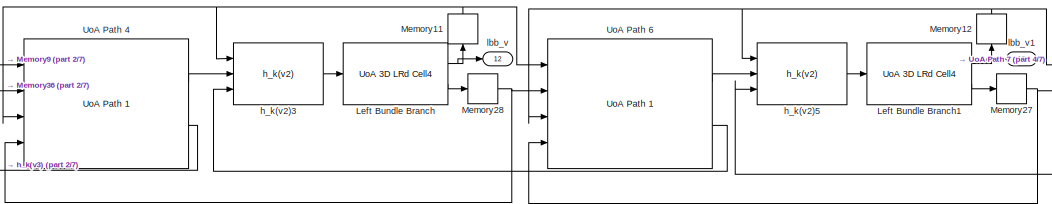
[diagram: Ventricles - part 6/7, central region]
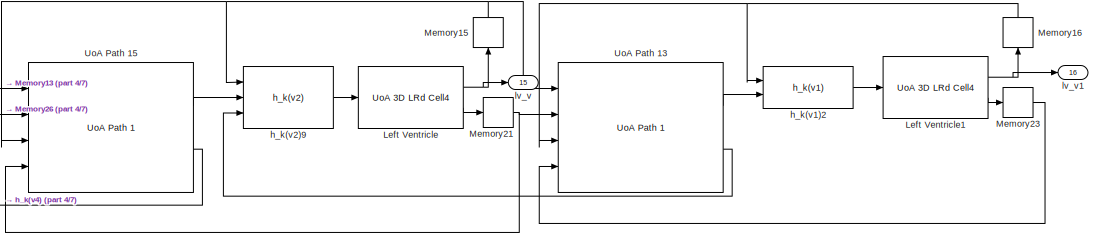
[diagram: Ventricles - part 7/7, bottom right region]
BLOCK [SubSystem] Ventricles
  Ports = [1, 19]
  RequestExecContextInheritance = off
BLOCK [Reference] Ventricles/Bundle of His  REF=UoA_3D_LRd_2008/UoA 3D LRd Cell4
  Ports = [1, 2]
  SourceBlock = UoA_3D_LRd_2008/UoA 3D LRd Cell4
  V_O_max = 131.1
  V_R = 30
  V_T = 44.5
  alpha0_x = -0.0087
  alpha0_y = -0.1909
  alpha0_z = -0.1904
  alpha1_x = -0.0236
  alpha1_y = -0.0455
  alpha1_z = -0.0129
  alpha2_x = -0.0069
  alpha2_y = 0.0759
  alpha2_z = 6.8265
  alpha3_x = -0.0332
  alpha3_y = 0.0110
  alpha3_z = 0.0020
  i_st_gx = 0.7772
  i_st_gy = 0.0589
  i_st_gz = 0.2766
  v_n_R_max = 0.04
BLOCK [Reference] Ventricles/Bundle of His1  REF=UoA_3D_LRd_2008/UoA 3D LRd Cell4
  Ports = [1, 2]
  SourceBlock = UoA_3D_LRd_2008/UoA 3D LRd Cell4
  V_O_max = 131.1
  V_R = 30
  V_T = 44.5
  alpha0_x = -0.0087
  alpha0_y = -0.1909
  alpha0_z = -0.1904
  alpha1_x = -0.0236
  alpha1_y = -0.0455
  alpha1_z = -0.0129
  alpha2_x = -0.0069
  alpha2_y = 0.0759
  alpha2_z = 6.8265
  alpha3_x = -0.0332
  alpha3_y = 0.0110
  alpha3_z = 0.0020
  i_st_gx = 0.7772
  i_st_gy = 0.0589
  i_st_gz = 0.2766
  v_n_R_max = 0.04
BLOCK [Reference] Ventricles/Bundle of His2  REF=UoA_3D_LRd_2008/UoA 3D LRd Cell4
  Ports = [1, 2]
  SourceBlock = UoA_3D_LRd_2008/UoA 3D LRd Cell4
  V_O_max = 131.1
  V_R = 30
  V_T = 44.5
  alpha0_x = -0.0087
  alpha0_y = -0.1909
  alpha0_z = -0.1904
  alpha1_x = -0.0236
  alpha1_y = -0.0455
  alpha1_z = -0.0129
  alpha2_x = -0.0069
  alpha2_y = 0.0759
  alpha2_z = 6.8265
  alpha3_x = -0.0332
  alpha3_y = 0.0110
  alpha3_z = 0.0020
  i_st_gx = 0.7772
  i_st_gy = 0.0589
  i_st_gz = 0.2766
  v_n_R_max = 0.04
BLOCK [Reference] Ventricles/Coronary Sinus  REF=UoA_3D_LRd_2008/UoA 3D LRd Cell4
  Ports = [1, 2]
  SourceBlock = UoA_3D_LRd_2008/UoA 3D LRd Cell4
  V_O_max = 131.1
  V_R = 30
  V_T = 44.5
  alpha0_x = -0.0087
  alpha0_y = -0.1909
  alpha0_z = -0.1904
  alpha1_x = -0.0236
  alpha1_y = -0.0455
  alpha1_z = -0.0129
  alpha2_x = -0.0069
  alpha2_y = 0.0759
  alpha2_z = 6.8265
  alpha3_x = -0.0332
  alpha3_y = 0.0110
  alpha3_z = 0.0020
  i_st_gx = 0.7772
  i_st_gy = 0.0589
  i_st_gz = 0.2766
  v_n_R_max = 0.04
BLOCK [Reference] Ventricles/Left Bundle Branch  REF=UoA_3D_LRd_2008/UoA 3D LRd Cell4
  Ports = [1, 2]
  SourceBlock = UoA_3D_LRd_2008/UoA 3D LRd Cell4
  V_O_max = 131.1
  V_R = 30
  V_T = 44.5
  alpha0_x = -0.0087
  alpha0_y = -0.1909
  alpha0_z = -0.1904
  alpha1_x = -0.0236
  alpha1_y = -0.0455
  alpha1_z = -0.0129
  alpha2_x = -0.0069
  alpha2_y = 0.0759
  alpha2_z = 6.8265
  alpha3_x = -0.0332
  alpha3_y = 0.0110
  alpha3_z = 0.0020
  i_st_gx = 0.7772
  i_st_gy = 0.0589
  i_st_gz = 0.2766
  v_n_R_max = 0.04
BLOCK [Reference] Ventricles/Left Bundle Branch1  REF=UoA_3D_LRd_2008/UoA 3D LRd Cell4
  Ports = [1, 2]
  SourceBlock = UoA_3D_LRd_2008/UoA 3D LRd Cell4
  V_O_max = 131.1
  V_R = 30
  V_T = 44.5
  alpha0_x = -0.0087
  alpha0_y = -0.1909
  alpha0_z = -0.1904
  alpha1_x = -0.0236
  alpha1_y = -0.0455
  alpha1_z = -0.0129
  alpha2_x = -0.0069
  alpha2_y = 0.0759
  alpha2_z = 6.8265
  alpha3_x = -0.0332
  alpha3_y = 0.0110
  alpha3_z = 0.0020
  i_st_gx = 0.7772
  i_st_gy = 0.0589
  i_st_gz = 0.2766
  v_n_R_max = 0.04
BLOCK [Reference] Ventricles/Left Septum  REF=UoA_3D_LRd_2008/UoA 3D LRd Cell4
  Ports = [1, 2]
  SourceBlock = UoA_3D_LRd_2008/UoA 3D LRd Cell4
  V_O_max = 131.1
  V_R = 30
  V_T = 44.5
  alpha0_x = -0.0087
  alpha0_y = -0.1909
  alpha0_z = -0.1904
  alpha1_x = -0.0236
  alpha1_y = -0.0455
  alpha1_z = -0.0129
  alpha2_x = -0.0069
  alpha2_y = 0.0759
  alpha2_z = 6.8265
  alpha3_x = -0.0332
  alpha3_y = 0.0110
  alpha3_z = 0.0020
  i_st_gx = 0.7772
  i_st_gy = 0.0589
  i_st_gz = 0.2766
  v_n_R_max = 0.04
BLOCK [Reference] Ventricles/Left Septum1  REF=UoA_3D_LRd_2008/UoA 3D LRd Cell4
  Ports = [1, 2]
  SourceBlock = UoA_3D_LRd_2008/UoA 3D LRd Cell4
  V_O_max = 131.1
  V_R = 30
  V_T = 44.5
  alpha0_x = -0.0087
  alpha0_y = -0.1909
  alpha0_z = -0.1904
  alpha1_x = -0.0236
  alpha1_y = -0.0455
  alpha1_z = -0.0129
  alpha2_x = -0.0069
  alpha2_y = 0.0759
  alpha2_z = 6.8265
  alpha3_x = -0.0332
  alpha3_y = 0.0110
  alpha3_z = 0.0020
  i_st_gx = 0.7772
  i_st_gy = 0.0589
  i_st_gz = 0.2766
  v_n_R_max = 0.04
BLOCK [Reference] Ventricles/Left Ventricle  REF=UoA_3D_LRd_2008/UoA 3D LRd Cell4
  Ports = [1, 2]
  SourceBlock = UoA_3D_LRd_2008/UoA 3D LRd Cell4
  V_O_max = 131.1
  V_R = 30
  V_T = 44.5
  alpha0_x = -0.0087
  alpha0_y = -0.1909
  alpha0_z = -0.1904
  alpha1_x = -0.0236
  alpha1_y = -0.0455
  alpha1_z = -0.0129
  alpha2_x = -0.0069
  alpha2_y = 0.0759
  alpha2_z = 6.8265
  alpha3_x = -0.0332
  alpha3_y = 0.0110
  alpha3_z = 0.0020
  i_st_gx = 0.7772
  i_st_gy = 0.0589
  i_st_gz = 0.2766
  v_n_R_max = 0.04
BLOCK [Reference] Ventricles/Left Ventricle1  REF=UoA_3D_LRd_2008/UoA 3D LRd Cell4
  Ports = [1, 2]
  SourceBlock = UoA_3D_LRd_2008/UoA 3D LRd Cell4
  V_O_max = 131.1
  V_R = 30
  V_T = 44.5
  alpha0_x = -0.0087
  alpha0_y = -0.1909
  alpha0_z = -0.1904
  alpha1_x = -0.0236
  alpha1_y = -0.0455
  alpha1_z = -0.0129
  alpha2_x = -0.0069
  alpha2_y = 0.0759
  alpha2_z = 6.8265
  alpha3_x = -0.0332
  alpha3_y = 0.0110
  alpha3_z = 0.0020
  i_st_gx = 0.7772
  i_st_gy = 0.0589
  i_st_gz = 0.2766
  v_n_R_max = 0.04
BLOCK [Reference] Ventricles/Left Ventricular Apex  REF=UoA_3D_LRd_2008/UoA 3D LRd Cell4
  Ports = [1, 2]
  SourceBlock = UoA_3D_LRd_2008/UoA 3D LRd Cell4
  V_O_max = 131.1
  V_R = 30
  V_T = 44.5
  alpha0_x = -0.0087
  alpha0_y = -0.1909
  alpha0_z = -0.1904
  alpha1_x = -0.0236
  alpha1_y = -0.0455
  alpha1_z = -0.0129
  alpha2_x = -0.0069
  alpha2_y = 0.0759
  alpha2_z = 6.8265
  alpha3_x = -0.0332
  alpha3_y = 0.0110
  alpha3_z = 0.0020
  i_st_gx = 0.7772
  i_st_gy = 0.0589
  i_st_gz = 0.2766
  v_n_R_max = 0.04
BLOCK [Memory] Ventricles/Memory1
BLOCK [Memory] Ventricles/Memory10
BLOCK [Memory] Ventricles/Memory11
BLOCK [Memory] Ventricles/Memory12
BLOCK [Memory] Ventricles/Memory13
BLOCK [Memory] Ventricles/Memory14
BLOCK [Memory] Ventricles/Memory15
BLOCK [Memory] Ventricles/Memory16
BLOCK [Memory] Ventricles/Memory17
BLOCK [Memory] Ventricles/Memory18
BLOCK [Memory] Ventricles/Memory19
BLOCK [Memory] Ventricles/Memory2
BLOCK [Memory] Ventricles/Memory20
BLOCK [Memory] Ventricles/Memory21
BLOCK [Memory] Ventricles/Memory22
BLOCK [Memory] Ventricles/Memory23
BLOCK [Memory] Ventricles/Memory26
BLOCK [Memory] Ventricles/Memory27
BLOCK [Memory] Ventricles/Memory28
BLOCK [Memory] Ventricles/Memory29
BLOCK [Memory] Ventricles/Memory3
BLOCK [Memory] Ventricles/Memory30
BLOCK [Memory] Ventricles/Memory31
BLOCK [Memory] Ventricles/Memory32
BLOCK [Memory] Ventricles/Memory33
BLOCK [Memory] Ventricles/Memory34
BLOCK [Memory] Ventricles/Memory35
BLOCK [Memory] Ventricles/Memory36
BLOCK [Memory] Ventricles/Memory37
BLOCK [Memory] Ventricles/Memory38
BLOCK [Memory] Ventricles/Memory4
BLOCK [Memory] Ventricles/Memory5
BLOCK [Memory] Ventricles/Memory6
BLOCK [Memory] Ventricles/Memory7
BLOCK [Memory] Ventricles/Memory8
BLOCK [Memory] Ventricles/Memory9
BLOCK [Reference] Ventricles/Right Bundle Branch  REF=UoA_3D_LRd_2008/UoA 3D LRd Cell4
  Ports = [1, 2]
  SourceBlock = UoA_3D_LRd_2008/UoA 3D LRd Cell4
  V_O_max = 131.1
  V_R = 30
  V_T = 44.5
  alpha0_x = -0.0087
  alpha0_y = -0.1909
  alpha0_z = -0.1904
  alpha1_x = -0.0236
  alpha1_y = -0.0455
  alpha1_z = -0.0129
  alpha2_x = -0.0069
  alpha2_y = 0.0759
  alpha2_z = 6.8265
  alpha3_x = -0.0332
  alpha3_y = 0.0110
  alpha3_z = 0.0020
  i_st_gx = 0.7772
  i_st_gy = 0.0589
  i_st_gz = 0.2766
  v_n_R_max = 0.04
BLOCK [Reference] Ventricles/Right Bundle Branch1  REF=UoA_3D_LRd_2008/UoA 3D LRd Cell4
  Ports = [1, 2]
  SourceBlock = UoA_3D_LRd_2008/UoA 3D LRd Cell4
  V_O_max = 131.1
  V_R = 30
  V_T = 44.5
  alpha0_x = -0.0087
  alpha0_y = -0.1909
  alpha0_z = -0.1904
  alpha1_x = -0.0236
  alpha1_y = -0.0455
  alpha1_z = -0.0129
  alpha2_x = -0.0069
  alpha2_y = 0.0759
  alpha2_z = 6.8265
  alpha3_x = -0.0332
  alpha3_y = 0.0110
  alpha3_z = 0.0020
  i_st_gx = 0.7772
  i_st_gy = 0.0589
  i_st_gz = 0.2766
  v_n_R_max = 0.04
BLOCK [Reference] Ventricles/Right Septum  REF=UoA_3D_LRd_2008/UoA 3D LRd Cell4
  Ports = [1, 2]
  SourceBlock = UoA_3D_LRd_2008/UoA 3D LRd Cell4
  V_O_max = 131.1
  V_R = 30
  V_T = 44.5
  alpha0_x = -0.0087
  alpha0_y = -0.1909
  alpha0_z = -0.1904
  alpha1_x = -0.0236
  alpha1_y = -0.0455
  alpha1_z = -0.0129
  alpha2_x = -0.0069
  alpha2_y = 0.0759
  alpha2_z = 6.8265
  alpha3_x = -0.0332
  alpha3_y = 0.0110
  alpha3_z = 0.0020
  i_st_gx = 0.7772
  i_st_gy = 0.0589
  i_st_gz = 0.2766
  v_n_R_max = 0.04
BLOCK [Reference] Ventricles/Right Septum1  REF=UoA_3D_LRd_2008/UoA 3D LRd Cell4
  Ports = [1, 2]
  SourceBlock = UoA_3D_LRd_2008/UoA 3D LRd Cell4
  V_O_max = 131.1
  V_R = 30
  V_T = 44.5
  alpha0_x = -0.0087
  alpha0_y = -0.1909
  alpha0_z = -0.1904
  alpha1_x = -0.0236
  alpha1_y = -0.0455
  alpha1_z = -0.0129
  alpha2_x = -0.0069
  alpha2_y = 0.0759
  alpha2_z = 6.8265
  alpha3_x = -0.0332
  alpha3_y = 0.0110
  alpha3_z = 0.0020
  i_st_gx = 0.7772
  i_st_gy = 0.0589
  i_st_gz = 0.2766
  v_n_R_max = 0.04
BLOCK [Reference] Ventricles/Right Ventricle  REF=UoA_3D_LRd_2008/UoA 3D LRd Cell4
  Ports = [1, 2]
  SourceBlock = UoA_3D_LRd_2008/UoA 3D LRd Cell4
  V_O_max = 131.1
  V_R = 30
  V_T = 44.5
  alpha0_x = -0.0087
  alpha0_y = -0.1909
  alpha0_z = -0.1904
  alpha1_x = -0.0236
  alpha1_y = -0.0455
  alpha1_z = -0.0129
  alpha2_x = -0.0069
  alpha2_y = 0.0759
  alpha2_z = 6.8265
  alpha3_x = -0.0332
  alpha3_y = 0.0110
  alpha3_z = 0.0020
  i_st_gx = 0.7772
  i_st_gy = 0.0589
  i_st_gz = 0.2766
  v_n_R_max = 0.04
BLOCK [Reference] Ventricles/Right Ventricle1  REF=UoA_3D_LRd_2008/UoA 3D LRd Cell4
  Ports = [1, 2]
  SourceBlock = UoA_3D_LRd_2008/UoA 3D LRd Cell4
  V_O_max = 131.1
  V_R = 30
  V_T = 44.5
  alpha0_x = -0.0087
  alpha0_y = -0.1909
  alpha0_z = -0.1904
  alpha1_x = -0.0236
  alpha1_y = -0.0455
  alpha1_z = -0.0129
  alpha2_x = -0.0069
  alpha2_y = 0.0759
  alpha2_z = 6.8265
  alpha3_x = -0.0332
  alpha3_y = 0.0110
  alpha3_z = 0.0020
  i_st_gx = 0.7772
  i_st_gy = 0.0589
  i_st_gz = 0.2766
  v_n_R_max = 0.04
BLOCK [Reference] Ventricles/Right Ventricular Apex  REF=UoA_3D_LRd_2008/UoA 3D LRd Cell4
  Ports = [1, 2]
  SourceBlock = UoA_3D_LRd_2008/UoA 3D LRd Cell4
  V_O_max = 131.1
  V_R = 30
  V_T = 44.5
  alpha0_x = -0.0087
  alpha0_y = -0.1909
  alpha0_z = -0.1904
  alpha1_x = -0.0236
  alpha1_y = -0.0455
  alpha1_z = -0.0129
  alpha2_x = -0.0069
  alpha2_y = 0.0759
  alpha2_z = 6.8265
  alpha3_x = -0.0332
  alpha3_y = 0.0110
  alpha3_z = 0.0020
  i_st_gx = 0.7772
  i_st_gy = 0.0589
  i_st_gz = 0.2766
  v_n_R_max = 0.04
BLOCK [Reference] Ventricles/UoA Path 1  REF=UoA_3D_LRd_2008/UoA Path 1
  Ports = [4, 2]
  SourceBlock = UoA_3D_LRd_2008/UoA Path 1
  cell1_charge_time = 10
  cell1_conduction_time = 20
  cell2_charge_time = 10
  cell2_conduction_time = 20
BLOCK [Reference] Ventricles/UoA Path 10  REF=UoA_3D_LRd_2008/UoA Path 1
  Ports = [4, 2]
  SourceBlock = UoA_3D_LRd_2008/UoA Path 1
  cell1_charge_time = 10
  cell1_conduction_time = 20
  cell2_charge_time = 10
  cell2_conduction_time = 20
BLOCK [Reference] Ventricles/UoA Path 11  REF=UoA_3D_LRd_2008/UoA Path 1
  Ports = [4, 2]
  SourceBlock = UoA_3D_LRd_2008/UoA Path 1
  cell1_charge_time = 10
  cell1_conduction_time = 15
  cell2_charge_time = 10
  cell2_conduction_time = 15
BLOCK [Reference] Ventricles/UoA Path 12  REF=UoA_3D_LRd_2008/UoA Path 1
  Ports = [4, 2]
  SourceBlock = UoA_3D_LRd_2008/UoA Path 1
  cell1_charge_time = 10
  cell1_conduction_time = 20
  cell2_charge_time = 10
  cell2_conduction_time = 20
BLOCK [Reference] Ventricles/UoA Path 13  REF=UoA_3D_LRd_2008/UoA Path 1
  Ports = [4, 2]
  SourceBlock = UoA_3D_LRd_2008/UoA Path 1
  cell1_charge_time = 10
  cell1_conduction_time = 30
  cell2_charge_time = 10
  cell2_conduction_time = 30
BLOCK [Reference] Ventricles/UoA Path 14  REF=UoA_3D_LRd_2008/UoA Path 1
  Ports = [4, 2]
  SourceBlock = UoA_3D_LRd_2008/UoA Path 1
  cell1_charge_time = 10
  cell1_conduction_time = 15
  cell2_charge_time = 10
  cell2_conduction_time = 15
BLOCK [Reference] Ventricles/UoA Path 15  REF=UoA_3D_LRd_2008/UoA Path 1
  Ports = [4, 2]
  SourceBlock = UoA_3D_LRd_2008/UoA Path 1
  cell1_charge_time = 10
  cell1_conduction_time = 20
  cell2_charge_time = 10
  cell2_conduction_time = 20
BLOCK [Reference] Ventricles/UoA Path 16  REF=UoA_3D_LRd_2008/UoA Path 1
  Ports = [4, 2]
  SourceBlock = UoA_3D_LRd_2008/UoA Path 1
  cell1_charge_time = 10
  cell1_conduction_time = 10
  cell2_charge_time = 10
  cell2_conduction_time = 10
BLOCK [Reference] Ventricles/UoA Path 17  REF=UoA_3D_LRd_2008/UoA Path 1
  Ports = [4, 2]
  SourceBlock = UoA_3D_LRd_2008/UoA Path 1
  cell1_charge_time = 10
  cell1_conduction_time = 15
  cell2_charge_time = 10
  cell2_conduction_time = 15
BLOCK [Reference] Ventricles/UoA Path 18  REF=UoA_3D_LRd_2008/UoA Path 1
  Ports = [4, 2]
  SourceBlock = UoA_3D_LRd_2008/UoA Path 1
  cell1_charge_time = 10
  cell1_conduction_time = 5
  cell2_charge_time = 10
  cell2_conduction_time = 5
BLOCK [Reference] Ventricles/UoA Path 2  REF=UoA_3D_LRd_2008/UoA Path 1
  Ports = [4, 2]
  SourceBlock = UoA_3D_LRd_2008/UoA Path 1
  cell1_charge_time = 10
  cell1_conduction_time = 20
  cell2_charge_time = 10
  cell2_conduction_time = 20
BLOCK [Reference] Ventricles/UoA Path 3  REF=UoA_3D_LRd_2008/UoA Path 1
  Ports = [4, 2]
  SourceBlock = UoA_3D_LRd_2008/UoA Path 1
  cell1_charge_time = 10
  cell1_conduction_time = 20
  cell2_charge_time = 10
  cell2_conduction_time = 20
BLOCK [Reference] Ventricles/UoA Path 4  REF=UoA_3D_LRd_2008/UoA Path 1
  Ports = [4, 2]
  SourceBlock = UoA_3D_LRd_2008/UoA Path 1
  cell1_charge_time = 10
  cell1_conduction_time = 20
  cell2_charge_time = 10
  cell2_conduction_time = 20
BLOCK [Reference] Ventricles/UoA Path 5  REF=UoA_3D_LRd_2008/UoA Path 1
  Ports = [4, 2]
  SourceBlock = UoA_3D_LRd_2008/UoA Path 1
  cell1_charge_time = 10
  cell1_conduction_time = 5
  cell2_charge_time = 10
  cell2_conduction_time = 5
BLOCK [Reference] Ventricles/UoA Path 6  REF=UoA_3D_LRd_2008/UoA Path 1
  Ports = [4, 2]
  SourceBlock = UoA_3D_LRd_2008/UoA Path 1
  cell1_charge_time = 10
  cell1_conduction_time = 5
  cell2_charge_time = 10
  cell2_conduction_time = 5
BLOCK [Reference] Ventricles/UoA Path 7  REF=UoA_3D_LRd_2008/UoA Path 1
  Ports = [4, 2]
  SourceBlock = UoA_3D_LRd_2008/UoA Path 1
  cell1_charge_time = 10
  cell1_conduction_time = 5
  cell2_charge_time = 10
  cell2_conduction_time = 5
BLOCK [Reference] Ventricles/UoA Path 8  REF=UoA_3D_LRd_2008/UoA Path 1
  Ports = [4, 2]
  SourceBlock = UoA_3D_LRd_2008/UoA Path 1
  cell1_charge_time = 10
  cell1_conduction_time = 5
  cell2_charge_time = 10
  cell2_conduction_time = 5
BLOCK [Reference] Ventricles/UoA Path 9  REF=UoA_3D_LRd_2008/UoA Path 1
  Ports = [4, 2]
  SourceBlock = UoA_3D_LRd_2008/UoA Path 1
  cell1_charge_time = 10
  cell1_conduction_time = 20
  cell2_charge_time = 10
  cell2_conduction_time = 20
BLOCK [Inport] Ventricles/av_v
  IconDisplay = Port number
BLOCK [Outport] Ventricles/bh_mode_back
  IconDisplay = Port number
  Port = 2
BLOCK [Outport] Ventricles/bh_v1
  IconDisplay = Port number
  Port = 3
BLOCK [Outport] Ventricles/bh_v2
  IconDisplay = Port number
  Port = 4
BLOCK [Outport] Ventricles/bh_v_back
  IconDisplay = Port number
BLOCK [Outport] Ventricles/cslv_v
  IconDisplay = Port number
  Port = 19
BLOCK [Reference] Ventricles/h_k(v1)  REF=UoA_3D_LRd_2008/h_k(v1)
  A_m = 10*10
  C_m = 1/(10*10)
  G_1 = 10*10
  Ports = [2, 1]
  SourceBlock = UoA_3D_LRd_2008/h_k(v1)
  d_1 = 10
  s_1 = 1/10
BLOCK [Reference] Ventricles/h_k(v1)1  REF=UoA_3D_LRd_2008/h_k(v1)
  A_m = 10*10
  C_m = 1/(10*10)
  G_1 = 10*10
  Ports = [2, 1]
  SourceBlock = UoA_3D_LRd_2008/h_k(v1)
  d_1 = 10
  s_1 = 1/10
BLOCK [Reference] Ventricles/h_k(v1)2  REF=UoA_3D_LRd_2008/h_k(v1)
  A_m = 10*10
  C_m = 1/(10*10)
  G_1 = 10*10
  Ports = [2, 1]
  SourceBlock = UoA_3D_LRd_2008/h_k(v1)
  d_1 = 10
  s_1 = 1/10
BLOCK [Reference] Ventricles/h_k(v1)3  REF=UoA_3D_LRd_2008/h_k(v1)
  A_m = 10*10
  C_m = 1/(10*10)
  G_1 = 10*10
  Ports = [2, 1]
  SourceBlock = UoA_3D_LRd_2008/h_k(v1)
  d_1 = 10
  s_1 = 1/10
BLOCK [Reference] Ventricles/h_k(v2)  REF=UoA_3D_LRd_2008/h_k(v2)
  A_m = 10*10
  C_m = 1/(10*10)
  G_1 = 10*10
  G_2 = 10*10
  Ports = [3, 1]
  SourceBlock = UoA_3D_LRd_2008/h_k(v2)
  d_1 = 10
  d_2 = 10
  s_1 = 1/10
  s_2 = 1/10
BLOCK [Reference] Ventricles/h_k(v2)1  REF=UoA_3D_LRd_2008/h_k(v2)
  A_m = 10*10
  C_m = 1/(10*10)
  G_1 = 10*10
  G_2 = 10*10
  Ports = [3, 1]
  SourceBlock = UoA_3D_LRd_2008/h_k(v2)
  d_1 = 10
  d_2 = 10
  s_1 = 1/10
  s_2 = 1/10
BLOCK [Reference] Ventricles/h_k(v2)10  REF=UoA_3D_LRd_2008/h_k(v2)
  A_m = 10*10
  C_m = 1/(10*10)
  G_1 = 10*10
  G_2 = 10*10
  Ports = [3, 1]
  SourceBlock = UoA_3D_LRd_2008/h_k(v2)
  d_1 = 10
  d_2 = 10
  s_1 = 1/10
  s_2 = 1/10
BLOCK [Reference] Ventricles/h_k(v2)2  REF=UoA_3D_LRd_2008/h_k(v2)
  A_m = 10*10
  C_m = 1/(10*10)
  G_1 = 10*10
  G_2 = 10*10
  Ports = [3, 1]
  SourceBlock = UoA_3D_LRd_2008/h_k(v2)
  d_1 = 10
  d_2 = 10
  s_1 = 1/10
  s_2 = 1/10
BLOCK [Reference] Ventricles/h_k(v2)3  REF=UoA_3D_LRd_2008/h_k(v2)
  A_m = 10*10
  C_m = 1/(10*10)
  G_1 = 10*10
  G_2 = 10*10
  Ports = [3, 1]
  SourceBlock = UoA_3D_LRd_2008/h_k(v2)
  d_1 = 10
  d_2 = 10
  s_1 = 1/10
  s_2 = 1/10
BLOCK [Reference] Ventricles/h_k(v2)4  REF=UoA_3D_LRd_2008/h_k(v2)
  A_m = 10*10
  C_m = 1/(10*10)
  G_1 = 10*10
  G_2 = 10*10
  Ports = [3, 1]
  SourceBlock = UoA_3D_LRd_2008/h_k(v2)
  d_1 = 10
  d_2 = 10
  s_1 = 1/10
  s_2 = 1/10
BLOCK [Reference] Ventricles/h_k(v2)5  REF=UoA_3D_LRd_2008/h_k(v2)
  A_m = 10*10
  C_m = 1/(10*10)
  G_1 = 10*10
  G_2 = 10*10
  Ports = [3, 1]
  SourceBlock = UoA_3D_LRd_2008/h_k(v2)
  d_1 = 10
  d_2 = 10
  s_1 = 1/10
  s_2 = 1/10
BLOCK [Reference] Ventricles/h_k(v2)6  REF=UoA_3D_LRd_2008/h_k(v2)
  A_m = 10*10
  C_m = 1/(10*10)
  G_1 = 10*10
  G_2 = 10*10
  Ports = [3, 1]
  SourceBlock = UoA_3D_LRd_2008/h_k(v2)
  d_1 = 10
  d_2 = 10
  s_1 = 1/10
  s_2 = 1/10
BLOCK [Reference] Ventricles/h_k(v2)7  REF=UoA_3D_LRd_2008/h_k(v2)
  A_m = 10*10
  C_m = 1/(10*10)
  G_1 = 10*10
  G_2 = 10*10
  Ports = [3, 1]
  SourceBlock = UoA_3D_LRd_2008/h_k(v2)
  d_1 = 10
  d_2 = 10
  s_1 = 1/10
  s_2 = 1/10
BLOCK [Reference] Ventricles/h_k(v2)8  REF=UoA_3D_LRd_2008/h_k(v2)
  A_m = 10*10
  C_m = 1/(10*10)
  G_1 = 10*10
  G_2 = 10*10
  Ports = [3, 1]
  SourceBlock = UoA_3D_LRd_2008/h_k(v2)
  d_1 = 10
  d_2 = 10
  s_1 = 1/10
  s_2 = 1/10
BLOCK [Reference] Ventricles/h_k(v2)9  REF=UoA_3D_LRd_2008/h_k(v2)
  A_m = 10*10
  C_m = 1/(10*10)
  G_1 = 10*10
  G_2 = 10*10
  Ports = [3, 1]
  SourceBlock = UoA_3D_LRd_2008/h_k(v2)
  d_1 = 10
  d_2 = 10
  s_1 = 1/10
  s_2 = 1/10
BLOCK [Reference] Ventricles/h_k(v3)  REF=UoA_3D_LRd_2008/h_k(v3)
  A_m = 10*10
  C_m = 1/(10*10)
  G_1 = 10*10
  G_2 = 10*10
  G_3 = 10*10
  Ports = [4, 1]
  SourceBlock = UoA_3D_LRd_2008/h_k(v3)
  d_1 = 1
  d_2 = 10
  d_3 = 10
  s_1 = 1/10
  s_2 = 1/10
  s_3 = 1/10
BLOCK [Reference] Ventricles/h_k(v4)  REF=UoA_3D_LRd_2008/h_k(v4)
  A_m = 10*10
  C_m = 1/(10*10)
  G_1 = 10*10
  G_2 = 10*10
  G_3 = 10*10
  G_4 = 10*10
  Ports = [5, 1]
  SourceBlock = UoA_3D_LRd_2008/h_k(v4)
  d_1 = 1
  d_2 = 10
  d_3 = 10
  d_4 = 10
  s_1 = 1/10
  s_2 = 1/10
  s_3 = 1/10
  s_4 = 1/10
BLOCK [Reference] Ventricles/h_k(v4)1  REF=UoA_3D_LRd_2008/h_k(v4)
  A_m = 10*10
  C_m = 1/(10*10)
  G_1 = 10*10
  G_2 = 10*10
  G_3 = 10*10
  G_4 = 10*10
  Ports = [5, 1]
  SourceBlock = UoA_3D_LRd_2008/h_k(v4)
  d_1 = 1
  d_2 = 10
  d_3 = 10
  d_4 = 10
  s_1 = 1/10
  s_2 = 1/10
  s_3 = 1/10
  s_4 = 1/10
BLOCK [Outport] Ventricles/lbb_v
  IconDisplay = Port number
  Port = 12
BLOCK [Outport] Ventricles/lbb_v1
  IconDisplay = Port number
  Port = 13
BLOCK [Outport] Ventricles/lv_v
  IconDisplay = Port number
  Port = 15
BLOCK [Outport] Ventricles/lv_v1
  IconDisplay = Port number
  Port = 16
BLOCK [Outport] Ventricles/lva_v
  IconDisplay = Port number
  Port = 14
BLOCK [Outport] Ventricles/lvs_v
  IconDisplay = Port number
  Port = 17
BLOCK [Outport] Ventricles/lvs_v1
  IconDisplay = Port number
  Port = 18
BLOCK [Outport] Ventricles/rbb_v
  IconDisplay = Port number
  Port = 5
BLOCK [Outport] Ventricles/rbb_v1
  IconDisplay = Port number
  Port = 6
BLOCK [Outport] Ventricles/rv_v
  IconDisplay = Port number
  Port = 8
BLOCK [Outport] Ventricles/rv_v1
  IconDisplay = Port number
  Port = 9
BLOCK [Outport] Ventricles/rva_v
  IconDisplay = Port number
  Port = 7
BLOCK [Outport] Ventricles/rvs_v
  IconDisplay = Port number
  Port = 10
BLOCK [Outport] Ventricles/rvs_v1
  IconDisplay = Port number
  Port = 11
BLOCK [Reference] h_k(v3)  REF=UoA_3D_LRd_2008/h_k(v3)
  A_m = 10*10
  C_m = 1/(10*10)
  G_1 = 10*10
  G_2 = 10*10
  G_3 = 10*10
  Ports = [4, 1]
  SourceBlock = UoA_3D_LRd_2008/h_k(v3)
  d_1 = 8
  d_2 = 8
  d_3 = 10
  s_1 = 1/10
  s_2 = 1/10
  s_3 = 1/10
BLOCK [Reference] h_k(v5)  REF=UoA_3D_LRd_2008/h_k(v5)
  A_m = 10*10
  C_m = 1/(10*10)
  G_1 = 10*10
  G_2 = 10*10
  G_3 = 10*10
  G_4 = 10*10
  G_5 = 10*10
  Ports = [6, 1]
  SourceBlock = UoA_3D_LRd_2008/h_k(v5)
  d_1 = 1
  d_2 = 10
  d_3 = 10
  d_4 = 10
  d_5 = 10
  s_1 = 1/10
  s_2 = 1/10
  s_3 = 1/10
  s_4 = 1/10
  s_5 = 1/10
NET Atria/Bachmann's Bundle:1 -> Atria/Memory7:1, Atria/bb_v_back:1
NET Atria/Bachmann's Bundle:2 -> Atria/Memory16:1, Atria/bb_mode_back:1
NET Atria/CT1:1 -> Atria/Memory1:1, Atria/ct_v1:1
LINE Atria/CT1:2 -> Atria/Memory23:1
NET Atria/CT:1 -> Atria/Memory:1, Atria/ct_v_back:1
NET Atria/CT:2 -> Atria/Memory22:1, Atria/ct_mode_back:1
NET Atria/Coronary Sinus:1 -> Atria/Memory12:1, Atria/cs_v:1
LINE Atria/Coronary Sinus:2 -> Atria/Memory19:1
NET Atria/Fast1:1 -> Atria/Memory6:1, Atria/fast_v1:1
NET Atria/Fast1:2 -> Atria/Memory18:1, Atria/fast_mode:1
NET Atria/Fast:1 -> Atria/Memory5:1, Atria/fast_v:1
LINE Atria/Fast:2 -> Atria/Memory25:1
NET Atria/LA1:1 -> Atria/Memory9:1, Atria/la_v1:1
LINE Atria/LA1:2 -> Atria/Memory14:1
NET Atria/LA:1 -> Atria/Memory8:1, Atria/la_v:1
LINE Atria/LA:2 -> Atria/Memory13:1
NET Atria/Memory10:1 -> Atria/UoA Path 4:1, Atria/h_k(v2)6:1
NET Atria/Memory11:1 -> Atria/UoA Path 4:3, Atria/UoA Path 5:1, Atria/h_k(v2)7:1
NET Atria/Memory12:1 -> Atria/UoA Path 5:3, Atria/h_k(v1)6:1
NET Atria/Memory13:1 -> Atria/UoA Path 1:4, Atria/UoA Path 2:2
LINE Atria/Memory14:1 -> Atria/UoA Path 2:4
NET Atria/Memory15:1 -> Atria/UoA Path 6:4, Atria/UoA Path 7:2
LINE Atria/Memory16:1 -> Atria/UoA Path 1:2
LINE Atria/Memory17:1 -> Atria/UoA Path 7:4
LINE Atria/Memory18:1 -> Atria/UoA Path 9:4
LINE Atria/Memory19:1 -> Atria/UoA Path 5:4
NET Atria/Memory1:1 -> Atria/UoA Path 3:3, Atria/h_k(v1)4:1
NET Atria/Memory20:1 -> Atria/UoA Path 6:2, Atria/UoA Path 8:2
LINE Atria/Memory21:1 -> Atria/UoA Path 4:2
LINE Atria/Memory22:1 -> Atria/UoA Path 3:2
LINE Atria/Memory23:1 -> Atria/UoA Path 3:4
NET Atria/Memory24:1 -> Atria/UoA Path 4:4, Atria/UoA Path 5:2
NET Atria/Memory25:1 -> Atria/UoA Path 8:4, Atria/UoA Path 9:2
NET Atria/Memory2:1 -> Atria/UoA Path 6:1, Atria/UoA Path 8:1, Atria/h_k(v3):1
NET Atria/Memory3:1 -> Atria/UoA Path 6:3, Atria/UoA Path 7:1, Atria/h_k(v2)2:1
NET Atria/Memory4:1 -> Atria/UoA Path 7:3, Atria/h_k(v2)3:1
NET Atria/Memory5:1 -> Atria/UoA Path 8:3, Atria/UoA Path 9:1, Atria/h_k(v2)4:1
NET Atria/Memory6:1 -> Atria/UoA Path 9:3, Atria/h_k(v2)5:1
NET Atria/Memory7:1 -> Atria/UoA Path 1:1, Atria/h_k(v2):1
NET Atria/Memory8:1 -> Atria/UoA Path 1:3, Atria/UoA Path 2:1, Atria/h_k(v2)1:1
NET Atria/Memory9:1 -> Atria/UoA Path 2:3, Atria/h_k(v1)12:1
NET Atria/Memory:1 -> Atria/UoA Path 3:1, Atria/h_k(v2)8:1
NET Atria/Ostium:1 -> Atria/Memory2:1, Atria/os_v_back:1
NET Atria/Ostium:2 -> Atria/Memory20:1, Atria/os_mode_back:1
NET Atria/RA1:1 -> Atria/Memory11:1, Atria/ra_v1:1
LINE Atria/RA1:2 -> Atria/Memory24:1
NET Atria/RA:1 -> Atria/Memory10:1, Atria/ra_v_back:1
NET Atria/RA:2 -> Atria/Memory21:1, Atria/ra_mode_back:1
LINE Atria/SA_v1:1 -> Atria/h_k(v2):2
LINE Atria/SA_v2:1 -> Atria/h_k(v3):2
LINE Atria/SA_v3:1 -> Atria/h_k(v2)6:2
LINE Atria/SA_v4:1 -> Atria/h_k(v2)8:2
NET Atria/Slow1:1 -> Atria/Memory4:1, Atria/slow_v1:1
NET Atria/Slow1:2 -> Atria/Memory17:1, Atria/slow1_mode:1
NET Atria/Slow:1 -> Atria/Memory3:1, Atria/slow_v:1
LINE Atria/Slow:2 -> Atria/Memory15:1
LINE Atria/UoA Path 1:1 -> Atria/h_k(v2)1:2
LINE Atria/UoA Path 1:2 -> Atria/h_k(v2):3
LINE Atria/UoA Path 2:1 -> Atria/h_k(v1)12:2
LINE Atria/UoA Path 2:2 -> Atria/h_k(v2)1:3
LINE Atria/UoA Path 3:1 -> Atria/h_k(v1)4:2
LINE Atria/UoA Path 3:2 -> Atria/h_k(v2)8:3
LINE Atria/UoA Path 4:1 -> Atria/h_k(v2)7:2
LINE Atria/UoA Path 4:2 -> Atria/h_k(v2)6:3
LINE Atria/UoA Path 5:1 -> Atria/h_k(v1)6:2
LINE Atria/UoA Path 5:2 -> Atria/h_k(v2)7:3
LINE Atria/UoA Path 6:1 -> Atria/h_k(v2)2:2
LINE Atria/UoA Path 6:2 -> Atria/h_k(v3):3
LINE Atria/UoA Path 7:1 -> Atria/h_k(v2)3:2
LINE Atria/UoA Path 7:2 -> Atria/h_k(v2)2:3
LINE Atria/UoA Path 8:1 -> Atria/h_k(v2)4:2
LINE Atria/UoA Path 8:2 -> Atria/h_k(v3):4
LINE Atria/UoA Path 9:1 -> Atria/h_k(v2)5:2
LINE Atria/UoA Path 9:2 -> Atria/h_k(v2)4:3
LINE Atria/av_v_back1:1 -> Atria/h_k(v2)3:3
LINE Atria/av_v_back2:1 -> Atria/h_k(v2)5:3
LINE Atria/h_k(v1)12:1 -> Atria/LA1:1
LINE Atria/h_k(v1)4:1 -> Atria/CT1:1
LINE Atria/h_k(v1)6:1 -> Atria/Coronary Sinus:1
LINE Atria/h_k(v2)1:1 -> Atria/LA:1
LINE Atria/h_k(v2)2:1 -> Atria/Slow:1
LINE Atria/h_k(v2)3:1 -> Atria/Slow1:1
LINE Atria/h_k(v2)4:1 -> Atria/Fast:1
LINE Atria/h_k(v2)5:1 -> Atria/Fast1:1
LINE Atria/h_k(v2)6:1 -> Atria/RA:1
LINE Atria/h_k(v2)7:1 -> Atria/RA1:1
LINE Atria/h_k(v2)8:1 -> Atria/CT:1
LINE Atria/h_k(v2):1 -> Atria/Bachmann's Bundle:1
LINE Atria/h_k(v3):1 -> Atria/Ostium:1
NET Atria:1 -> BB:1, Memory5:1
LINE Atria:10 -> Fast:1
NET Atria:11 -> Fast1:1, Memory15:1
LINE Atria:12 -> Memory17:1
NET Atria:13 -> Memory3:1, RA:1
LINE Atria:14 -> Memory10:1
LINE Atria:15 -> RA1:1
LINE Atria:16 -> CS:1
NET Atria:17 -> CT:1, Memory2:1
LINE Atria:18 -> Memory11:1
LINE Atria:19 -> CT1:1
LINE Atria:2 -> Memory8:1
LINE Atria:3 -> LA:1
LINE Atria:4 -> LA1:1
NET Atria:5 -> Memory4:1, OS:1
LINE Atria:6 -> Memory9:1
LINE Atria:7 -> Slow:1
NET Atria:8 -> Memory14:1, Slow1:1
LINE Atria:9 -> Memory16:1
NET Atrioventricular Node:1 -> AV:1, Memory1:1
LINE Atrioventricular Node:2 -> Memory12:1
LINE F_AV:1 -> h_k(v3):3
LINE F_AV:2 -> Atria:6
LINE Memory10:1 -> SA_BB3:4
LINE Memory11:1 -> SA_BB4:4
NET Memory12:1 -> F_AV:4, S_AV:4, UoA Path 1:2
LINE Memory13:1 -> UoA Path 1:4
LINE Memory14:1 -> S_AV:1
LINE Memory15:1 -> F_AV:1
LINE Memory16:1 -> S_AV:2
LINE Memory17:1 -> F_AV:2
NET Memory1:1 -> F_AV:3, S_AV:3, UoA Path 1:1, h_k(v3):1
LINE Memory2:1 -> SA_BB4:3
LINE Memory3:1 -> SA_BB3:3
LINE Memory4:1 -> SA_BB2:3
LINE Memory5:1 -> SA_BB1:3
LINE Memory6:1 -> UoA Path 1:3
NET Memory7:1 -> SA_BB1:2, SA_BB2:2, SA_BB3:2, SA_BB4:2
LINE Memory8:1 -> SA_BB1:4
LINE Memory9:1 -> SA_BB2:4
NET Memory:1 -> SA_BB1:1, SA_BB2:1, SA_BB3:1, SA_BB4:1, h_k(v5):1
LINE SA_BB1:1 -> Atria:1
LINE SA_BB1:2 -> h_k(v5):3
LINE SA_BB2:1 -> Atria:2
LINE SA_BB2:2 -> h_k(v5):4
LINE SA_BB3:1 -> Atria:3
LINE SA_BB3:2 -> h_k(v5):5
LINE SA_BB4:1 -> Atria:4
LINE SA_BB4:2 -> h_k(v5):6
LINE S_AV:1 -> h_k(v3):2
LINE S_AV:2 -> Atria:5
NET Sinoatrial Node:1 -> Memory:1, SA:1
LINE Sinoatrial Node:2 -> Memory7:1
LINE Stimulus1:1 -> Sum:2
LINE Stimulus2:1 -> Sum:3
LINE Stimulus:1 -> Sum:1
LINE Sum:1 -> h_k(v5):2
LINE UoA Path 1:1 -> Ventricles:1
LINE UoA Path 1:2 -> h_k(v3):4
NET Ventricles/Bundle of His1:1 -> Ventricles/Memory8:1, Ventricles/bh_v1:1
LINE Ventricles/Bundle of His1:2 -> Ventricles/Memory34:1
NET Ventricles/Bundle of His2:1 -> Ventricles/Memory9:1, Ventricles/bh_v2:1
LINE Ventricles/Bundle of His2:2 -> Ventricles/Memory36:1
NET Ventricles/Bundle of His:1 -> Ventricles/Memory7:1, Ventricles/bh_v_back:1
NET Ventricles/Bundle of His:2 -> Ventricles/Memory35:1, Ventricles/bh_mode_back:1
NET Ventricles/Coronary Sinus:1 -> Ventricles/Memory18:1, Ventricles/cslv_v:1
LINE Ventricles/Coronary Sinus:2 -> Ventricles/Memory22:1
NET Ventricles/Left Bundle Branch1:1 -> Ventricles/Memory12:1, Ventricles/lbb_v1:1
LINE Ventricles/Left Bundle Branch1:2 -> Ventricles/Memory27:1
NET Ventricles/Left Bundle Branch:1 -> Ventricles/Memory11:1, Ventricles/lbb_v:1
LINE Ventricles/Left Bundle Branch:2 -> Ventricles/Memory28:1
NET Ventricles/Left Septum1:1 -> Ventricles/Memory14:1, Ventricles/lvs_v1:1
LINE Ventricles/Left Septum1:2 -> Ventricles/Memory37:1
NET Ventricles/Left Septum:1 -> Ventricles/Memory17:1, Ventricles/lvs_v:1
LINE Ventricles/Left Septum:2 -> Ventricles/Memory38:1
NET Ventricles/Left Ventricle1:1 -> Ventricles/Memory16:1, Ventricles/lv_v1:1
LINE Ventricles/Left Ventricle1:2 -> Ventricles/Memory23:1
NET Ventricles/Left Ventricle:1 -> Ventricles/Memory15:1, Ventricles/lv_v:1
LINE Ventricles/Left Ventricle:2 -> Ventricles/Memory21:1
NET Ventricles/Left Ventricular Apex:1 -> Ventricles/Memory13:1, Ventricles/lva_v:1
LINE Ventricles/Left Ventricular Apex:2 -> Ventricles/Memory26:1
NET Ventricles/Memory10:1 -> Ventricles/UoA Path 9:3, Ventricles/h_k(v1)1:1
NET Ventricles/Memory11:1 -> Ventricles/UoA Path 4:3, Ventricles/UoA Path 6:1, Ventricles/h_k(v2)3:1
NET Ventricles/Memory12:1 -> Ventricles/UoA Path 6:3, Ventricles/UoA Path 7:1, Ventricles/h_k(v2)5:1
NET Ventricles/Memory13:1 -> Ventricles/UoA Path 14:1, Ventricles/UoA Path 15:1, Ventricles/UoA Path 18:3, Ventricles/UoA Path 7:3, Ventricles/h_k(v4):1
NET Ventricles/Memory14:1 -> Ventricles/UoA Path 11:3, Ventricles/UoA Path 12:1, Ventricles/h_k(v2)10:1
NET Ventricles/Memory15:1 -> Ventricles/UoA Path 13:1, Ventricles/UoA Path 15:3, Ventricles/h_k(v2)9:1
NET Ventricles/Memory16:1 -> Ventricles/UoA Path 13:3, Ventricles/h_k(v1)2:1
NET Ventricles/Memory17:1 -> Ventricles/UoA Path 11:1, Ventricles/UoA Path 14:3, Ventricles/h_k(v2)8:1
NET Ventricles/Memory18:1 -> Ventricles/UoA Path 12:3, Ventricles/h_k(v1)3:1
LINE Ventricles/Memory19:1 -> Ventricles/UoA Path 10:4
NET Ventricles/Memory1:1 -> Ventricles/UoA Path 3:3, Ventricles/UoA Path 5:1, Ventricles/h_k(v2):1
LINE Ventricles/Memory20:1 -> Ventricles/UoA Path 9:4
NET Ventricles/Memory21:1 -> Ventricles/UoA Path 13:2, Ventricles/UoA Path 15:4
LINE Ventricles/Memory22:1 -> Ventricles/UoA Path 12:4
LINE Ventricles/Memory23:1 -> Ventricles/UoA Path 13:4
NET Ventricles/Memory26:1 -> Ventricles/UoA Path 14:2, Ventricles/UoA Path 15:2, Ventricles/UoA Path 18:4, Ventricles/UoA Path 7:4
NET Ventricles/Memory27:1 -> Ventricles/UoA Path 6:4, Ventricles/UoA Path 7:2
NET Ventricles/Memory28:1 -> Ventricles/UoA Path 4:4, Ventricles/UoA Path 6:2
NET Ventricles/Memory29:1 -> Ventricles/UoA Path 10:2, Ventricles/UoA Path 16:4
NET Ventricles/Memory2:1 -> Ventricles/UoA Path 5:3, Ventricles/UoA Path 8:1, Ventricles/h_k(v2)4:1
NET Ventricles/Memory30:1 -> Ventricles/UoA Path 16:2, Ventricles/UoA Path 17:2, Ventricles/UoA Path 18:2, Ventricles/UoA Path 8:4
NET Ventricles/Memory31:1 -> Ventricles/UoA Path 5:4, Ventricles/UoA Path 8:2
NET Ventricles/Memory32:1 -> Ventricles/UoA Path 17:4, Ventricles/UoA Path 9:2
NET Ventricles/Memory33:1 -> Ventricles/UoA Path 3:4, Ventricles/UoA Path 5:2
NET Ventricles/Memory34:1 -> Ventricles/UoA Path 1:4, Ventricles/UoA Path 2:2
LINE Ventricles/Memory35:1 -> Ventricles/UoA Path 1:2
NET Ventricles/Memory36:1 -> Ventricles/UoA Path 2:4, Ventricles/UoA Path 3:2, Ventricles/UoA Path 4:2
NET Ventricles/Memory37:1 -> Ventricles/UoA Path 11:4, Ventricles/UoA Path 12:2
NET Ventricles/Memory38:1 -> Ventricles/UoA Path 11:2, Ventricles/UoA Path 14:4
NET Ventricles/Memory3:1 -> Ventricles/UoA Path 16:1, Ventricles/UoA Path 17:1, Ventricles/UoA Path 18:1, Ventricles/UoA Path 8:3, Ventricles/h_k(v4)1:1
NET Ventricles/Memory4:1 -> Ventricles/UoA Path 10:1, Ventricles/UoA Path 16:3, Ventricles/h_k(v2)6:1
NET Ventricles/Memory5:1 -> Ventricles/UoA Path 10:3, Ventricles/h_k(v1):1
NET Ventricles/Memory6:1 -> Ventricles/UoA Path 17:3, Ventricles/UoA Path 9:1, Ventricles/h_k(v2)7:1
NET Ventricles/Memory7:1 -> Ventricles/UoA Path 1:1, Ventricles/h_k(v2)1:1
NET Ventricles/Memory8:1 -> Ventricles/UoA Path 1:3, Ventricles/UoA Path 2:1, Ventricles/h_k(v2)2:1
NET Ventricles/Memory9:1 -> Ventricles/UoA Path 2:3, Ventricles/UoA Path 3:1, Ventricles/UoA Path 4:1, Ventricles/h_k(v3):1
NET Ventricles/Right Bundle Branch1:1 -> Ventricles/Memory2:1, Ventricles/rbb_v1:1
LINE Ventricles/Right Bundle Branch1:2 -> Ventricles/Memory31:1
NET Ventricles/Right Bundle Branch:1 -> Ventricles/Memory1:1, Ventricles/rbb_v:1
LINE Ventricles/Right Bundle Branch:2 -> Ventricles/Memory33:1
NET Ventricles/Right Septum1:1 -> Ventricles/Memory10:1, Ventricles/rvs_v1:1
LINE Ventricles/Right Septum1:2 -> Ventricles/Memory20:1
NET Ventricles/Right Septum:1 -> Ventricles/Memory6:1, Ventricles/rvs_v:1
LINE Ventricles/Right Septum:2 -> Ventricles/Memory32:1
NET Ventricles/Right Ventricle1:1 -> Ventricles/Memory5:1, Ventricles/rv_v1:1
LINE Ventricles/Right Ventricle1:2 -> Ventricles/Memory19:1
NET Ventricles/Right Ventricle:1 -> Ventricles/Memory4:1, Ventricles/rv_v:1
LINE Ventricles/Right Ventricle:2 -> Ventricles/Memory29:1
NET Ventricles/Right Ventricular Apex:1 -> Ventricles/Memory3:1, Ventricles/rva_v:1
LINE Ventricles/Right Ventricular Apex:2 -> Ventricles/Memory30:1
LINE Ventricles/UoA Path 10:1 -> Ventricles/h_k(v1):2
LINE Ventricles/UoA Path 10:2 -> Ventricles/h_k(v2)6:3
LINE Ventricles/UoA Path 11:1 -> Ventricles/h_k(v2)10:2
LINE Ventricles/UoA Path 11:2 -> Ventricles/h_k(v2)8:3
LINE Ventricles/UoA Path 12:1 -> Ventricles/h_k(v1)3:2
LINE Ventricles/UoA Path 12:2 -> Ventricles/h_k(v2)10:3
LINE Ventricles/UoA Path 13:1 -> Ventricles/h_k(v1)2:2
LINE Ventricles/UoA Path 13:2 -> Ventricles/h_k(v2)9:3
LINE Ventricles/UoA Path 14:1 -> Ventricles/h_k(v2)8:2
LINE Ventricles/UoA Path 14:2 -> Ventricles/h_k(v4):5
LINE Ventricles/UoA Path 15:1 -> Ventricles/h_k(v2)9:2
LINE Ventricles/UoA Path 15:2 -> Ventricles/h_k(v4):4
LINE Ventricles/UoA Path 16:1 -> Ventricles/h_k(v2)6:2
LINE Ventricles/UoA Path 16:2 -> Ventricles/h_k(v4)1:3
LINE Ventricles/UoA Path 17:1 -> Ventricles/h_k(v2)7:2
LINE Ventricles/UoA Path 17:2 -> Ventricles/h_k(v4)1:4
LINE Ventricles/UoA Path 18:1 -> Ventricles/h_k(v4):2
LINE Ventricles/UoA Path 18:2 -> Ventricles/h_k(v4)1:5
LINE Ventricles/UoA Path 1:1 -> Ventricles/h_k(v2)2:2
LINE Ventricles/UoA Path 1:2 -> Ventricles/h_k(v2)1:3
LINE Ventricles/UoA Path 2:1 -> Ventricles/h_k(v3):2
LINE Ventricles/UoA Path 2:2 -> Ventricles/h_k(v2)2:3
LINE Ventricles/UoA Path 3:1 -> Ventricles/h_k(v2):2
LINE Ventricles/UoA Path 3:2 -> Ventricles/h_k(v3):4
LINE Ventricles/UoA Path 4:1 -> Ventricles/h_k(v2)3:2
LINE Ventricles/UoA Path 4:2 -> Ventricles/h_k(v3):3
LINE Ventricles/UoA Path 5:1 -> Ventricles/h_k(v2)4:2
LINE Ventricles/UoA Path 5:2 -> Ventricles/h_k(v2):3
LINE Ventricles/UoA Path 6:1 -> Ventricles/h_k(v2)5:2
LINE Ventricles/UoA Path 6:2 -> Ventricles/h_k(v2)3:3
LINE Ventricles/UoA Path 7:1 -> Ventricles/h_k(v4):3
LINE Ventricles/UoA Path 7:2 -> Ventricles/h_k(v2)5:3
LINE Ventricles/UoA Path 8:1 -> Ventricles/h_k(v4)1:2
LINE Ventricles/UoA Path 8:2 -> Ventricles/h_k(v2)4:3
LINE Ventricles/UoA Path 9:1 -> Ventricles/h_k(v1)1:2
LINE Ventricles/UoA Path 9:2 -> Ventricles/h_k(v2)7:3
LINE Ventricles/av_v:1 -> Ventricles/h_k(v2)1:2
LINE Ventricles/h_k(v1)1:1 -> Ventricles/Right Septum1:1
LINE Ventricles/h_k(v1)2:1 -> Ventricles/Left Ventricle1:1
LINE Ventricles/h_k(v1)3:1 -> Ventricles/Coronary Sinus:1
LINE Ventricles/h_k(v1):1 -> Ventricles/Right Ventricle1:1
LINE Ventricles/h_k(v2)10:1 -> Ventricles/Left Septum1:1
LINE Ventricles/h_k(v2)1:1 -> Ventricles/Bundle of His:1
LINE Ventricles/h_k(v2)2:1 -> Ventricles/Bundle of His1:1
LINE Ventricles/h_k(v2)3:1 -> Ventricles/Left Bundle Branch:1
LINE Ventricles/h_k(v2)4:1 -> Ventricles/Right Bundle Branch1:1
LINE Ventricles/h_k(v2)5:1 -> Ventricles/Left Bundle Branch1:1
LINE Ventricles/h_k(v2)6:1 -> Ventricles/Right Ventricle:1
LINE Ventricles/h_k(v2)7:1 -> Ventricles/Right Septum:1
LINE Ventricles/h_k(v2)8:1 -> Ventricles/Left Septum:1
LINE Ventricles/h_k(v2)9:1 -> Ventricles/Left Ventricle:1
LINE Ventricles/h_k(v2):1 -> Ventricles/Right Bundle Branch:1
LINE Ventricles/h_k(v3):1 -> Ventricles/Bundle of His2:1
LINE Ventricles/h_k(v4)1:1 -> Ventricles/Right Ventricular Apex:1
LINE Ventricles/h_k(v4):1 -> Ventricles/Left Ventricular Apex:1
NET Ventricles:1 -> BH:1, Memory6:1
LINE Ventricles:10 -> RVS:1
LINE Ventricles:11 -> RVS1:1
LINE Ventricles:12 -> LBB:1
LINE Ventricles:13 -> LBB1:1
LINE Ventricles:14 -> LVA:1
LINE Ventricles:15 -> LV:1
LINE Ventricles:16 -> LV1:1
LINE Ventricles:17 -> LVS:1
LINE Ventricles:18 -> LVS1:1
LINE Ventricles:19 -> CSLV:1
LINE Ventricles:2 -> Memory13:1
LINE Ventricles:3 -> BH1:1
LINE Ventricles:4 -> BH2:1
LINE Ventricles:5 -> RBB:1
LINE Ventricles:6 -> RBB1:1
LINE Ventricles:7 -> RVA:1
LINE Ventricles:8 -> RV:1
LINE Ventricles:9 -> RV1:1
LINE h_k(v3):1 -> Atrioventricular Node:1
LINE h_k(v5):1 -> Sinoatrial Node:1
note: NET lines group one-source signal fan-out (src -> all destinations, sorted); 1:1 wires keep LINE
